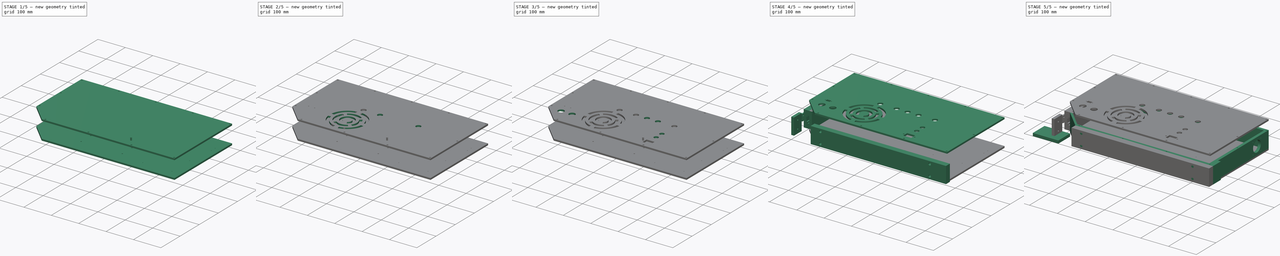
[diagram: build sequence overview — one tinted view per stage of 5, left to right]
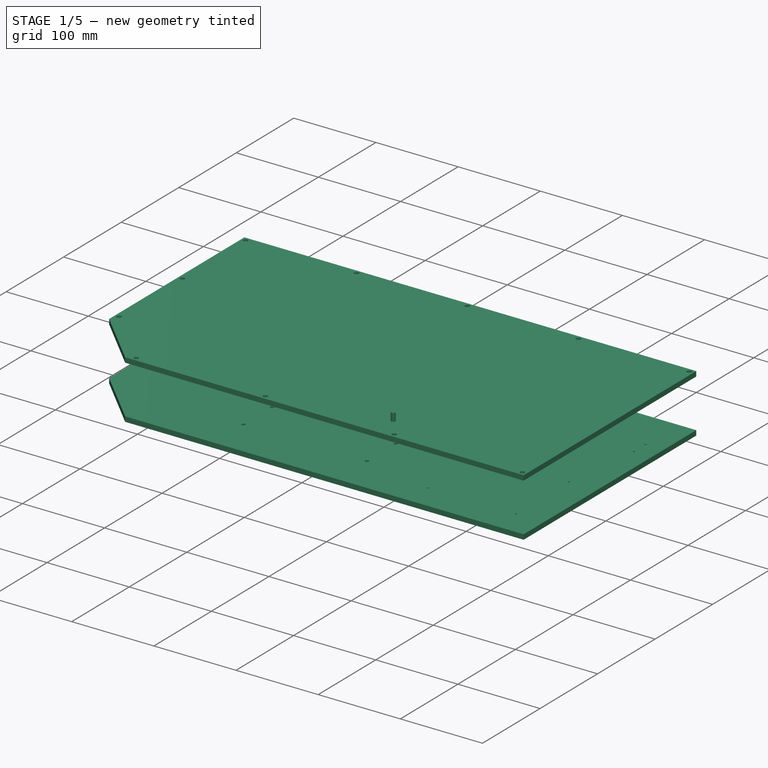
[diagram: stage 1 of 5 — iso view after this stage's code; geometry added in this stage tinted green]
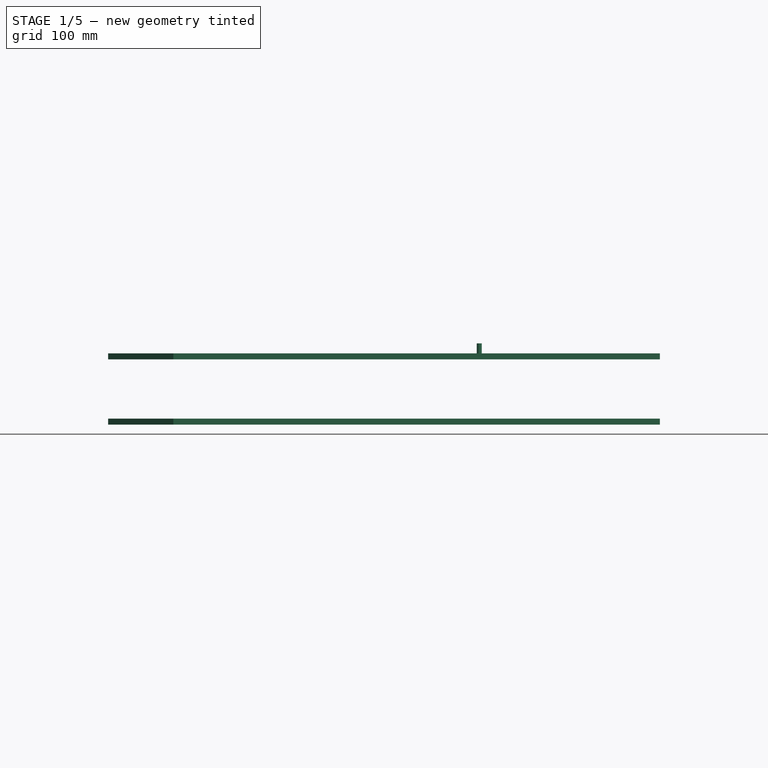
[diagram: stage 1 of 5 — front view after this stage's code; geometry added in this stage tinted green]
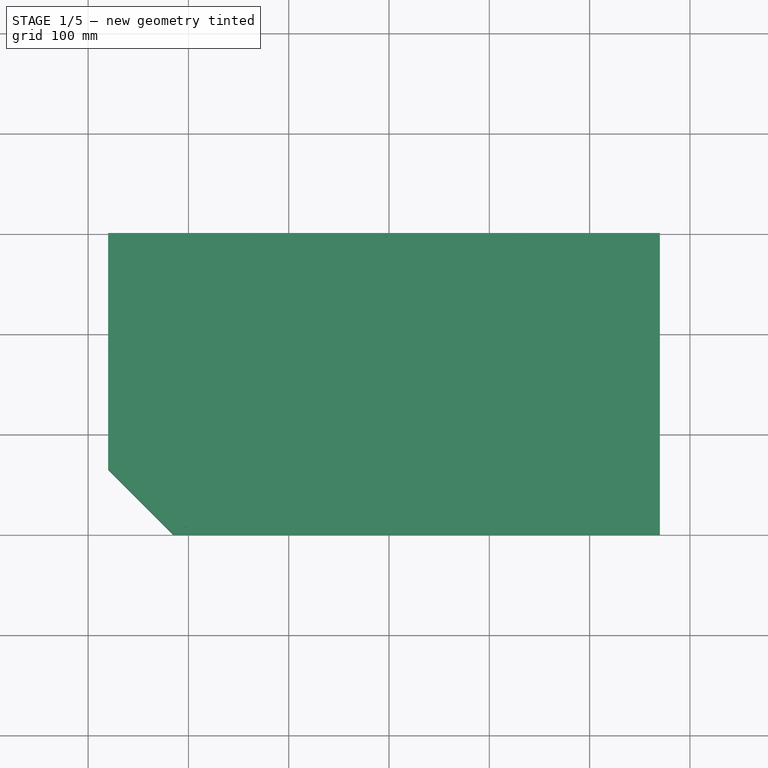
[diagram: stage 1 of 5 — top view after this stage's code; geometry added in this stage tinted green]
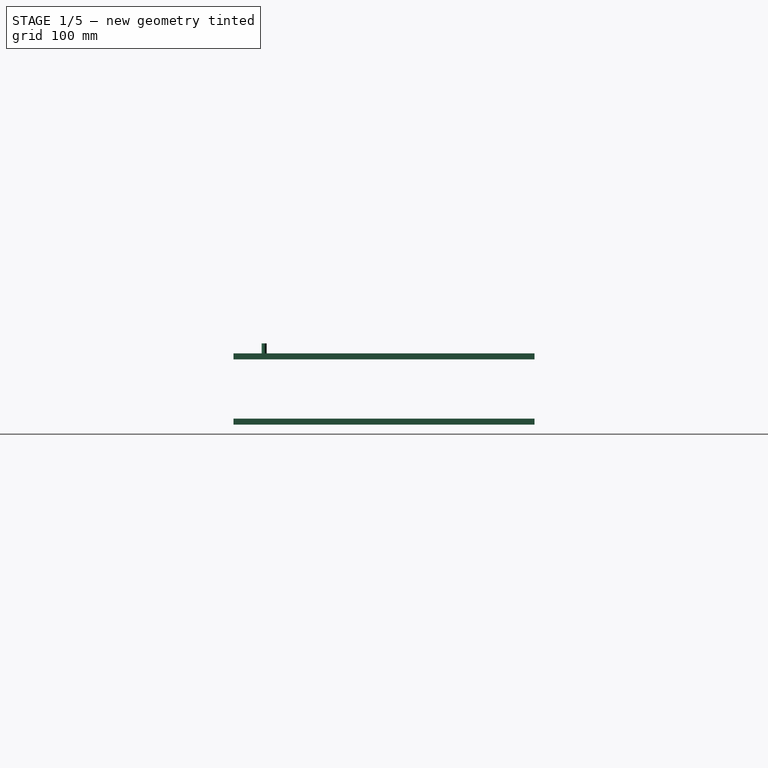
[diagram: stage 1 of 5 — right view after this stage's code; geometry added in this stage tinted green]
FCSTD DOCUMENT  (FreeCAD 0.17R13528 (Git))
Label: 2018-11-11_cosi-measure-v1.0_casing
License: All rights reserved
LicenseURL: http://en.wikipedia.org/wiki/All_rights_reserved
objects: Sketcher::SketchObject×61, PartDesign::Pad×42, PartDesign::Body×35, TechDraw::DrawViewDimension×30, PartDesign::ShapeBinder×29, Part::Cut×23, PartDesign::Hole×18, Part::Part2DObjectPython×15, PartDesign::Boolean×2, Part::MultiFuse×2, TechDraw::DrawProjGroupItem×2, TechDraw::DrawSVGTemplate×1, TechDraw::DrawProjGroup×1, TechDraw::DrawViewAnnotation×1, TechDraw::DrawPage×1
note: 287 computed .brp shape members not serialized (recipe doc carries the construction recipe); baked Part::Feature solids carry a one-line shape summary decoded from their .brp

FEATURE [Sketcher::SketchObject] Sketch008
  MapMode = 5
  Support = -> [XY_Plane007]
  sketch-geometry (5):
    g0: LineSegment StartX=85 StartY=0 StartZ=0 EndX=20 EndY=65 EndZ=0
    g1: LineSegment StartX=20 StartY=65 StartZ=0 EndX=20 EndY=300 EndZ=0
    g2: LineSegment StartX=20 StartY=300 StartZ=0 EndX=570 EndY=300 EndZ=0
    g3: LineSegment StartX=570 StartY=300 StartZ=0 EndX=570 EndY=0 EndZ=0
    g4: LineSegment StartX=570 StartY=0 StartZ=0 EndX=85 EndY=0 EndZ=0
  constraints (15):
    c: PointOnObject(g0,g-1)
    c: Coincident(g0,g1)
    c: Vertical(g1)
    c: Coincident(g1,g2)
    c: Horizontal(g2)
    c: Coincident(g2,g3)
    c: Vertical(g3)
    c: Coincident(g3,g4)
    c: Coincident(g4,g0)
    c: Horizontal(g4)
    c: DistanceY(g3,g3) = 300
    c: DistanceX(g2,g2) = 550
    c: DistanceX(g-1,g0) = 20
    c: Angle(g0,g-1) = 0.785398
    c: DistanceX(g-1,g0) = 85
FEATURE [PartDesign::Pad] Pad
  Length = 6
  Length2 = 100
  Profile = -> Sketch008
  Type = 0
FEATURE [Sketcher::SketchObject] Sketch
  MapMode = 5
  Placement = pos=(0,0,6) rot=(0,0,1;0rad)
  Support = -> [Pad]
  sketch-geometry (24):
    g0: Circle CenterX=60 CenterY=160 CenterZ=0 NormalX=0 NormalY=0 NormalZ=1 AngleXU=0 Radius=3
    g1: Circle CenterX=158 CenterY=160 CenterZ=0 NormalX=0 NormalY=0 NormalZ=1 AngleXU=0 Radius=3
    g2: Circle CenterX=158 CenterY=252 CenterZ=0 NormalX=0 NormalY=0 NormalZ=1 AngleXU=0 Radius=3
    g3: Circle CenterX=60 CenterY=252 CenterZ=0 NormalX=0 NormalY=0 NormalZ=1 AngleXU=0 Radius=3
    g4: Circle CenterX=186 CenterY=223 CenterZ=0 NormalX=0 NormalY=0 NormalZ=1 AngleXU=0 Radius=3
    g5: Circle CenterX=186 CenterY=243 CenterZ=0 NormalX=0 NormalY=0 NormalZ=1 AngleXU=0 Radius=3
    g6: Circle CenterX=297.4 CenterY=243 CenterZ=0 NormalX=0 NormalY=0 NormalZ=1 AngleXU=0 Radius=3
    g7: Circle CenterX=297.4 CenterY=223 CenterZ=0 NormalX=0 NormalY=0 NormalZ=1 AngleXU=0 Radius=3
    g8: Circle CenterX=311.4 CenterY=243 CenterZ=0 NormalX=0 NormalY=0 NormalZ=1 AngleXU=0 Radius=3
    g9: Circle CenterX=422.8 CenterY=243 CenterZ=0 NormalX=0 NormalY=0 NormalZ=1 AngleXU=0 Radius=3
    g10: Circle CenterX=422.8 CenterY=223 CenterZ=0 NormalX=0 NormalY=0 NormalZ=1 AngleXU=0 Radius=3
    g11: Circle CenterX=311.4 CenterY=223 CenterZ=0 NormalX=0 NormalY=0 NormalZ=1 AngleXU=0 Radius=3
    g12: Circle CenterX=436.8 CenterY=243 CenterZ=0 NormalX=0 NormalY=0 NormalZ=1 AngleXU=0 Radius=3
    g13: Circle CenterX=436.8 CenterY=223 CenterZ=0 NormalX=0 NormalY=0 NormalZ=1 AngleXU=0 Radius=3
    g14: Circle CenterX=548.2 CenterY=243 CenterZ=0 NormalX=0 NormalY=0 NormalZ=1 AngleXU=0 Radius=3
    g15: Circle CenterX=548.2 CenterY=223 CenterZ=0 NormalX=0 NormalY=0 NormalZ=1 AngleXU=0 Radius=3
    g16: Circle CenterX=192.5 CenterY=52 CenterZ=0 NormalX=0 NormalY=0 NormalZ=1 AngleXU=0 Radius=3
    g17: Circle CenterX=192.5 CenterY=102 CenterZ=0 NormalX=0 NormalY=0 NormalZ=1 AngleXU=0 Radius=3
    g18: Circle CenterX=342.5 CenterY=102 CenterZ=0 NormalX=0 NormalY=0 NormalZ=1 AngleXU=0 Radius=3
    g19: Circle CenterX=342.5 CenterY=52 CenterZ=0 NormalX=0 NormalY=0 NormalZ=1 AngleXU=0 Radius=3
    g20: Circle CenterX=430 CenterY=127 CenterZ=0 NormalX=0 NormalY=0 NormalZ=1 AngleXU=0 Radius=3
    g21: Circle CenterX=536 CenterY=35 CenterZ=0 NormalX=0 NormalY=0 NormalZ=1 AngleXU=0 Radius=3
    g22: Circle CenterX=536 CenterY=127 CenterZ=0 NormalX=0 NormalY=0 NormalZ=1 AngleXU=0 Radius=3
    g23: Circle CenterX=429.291 CenterY=35 CenterZ=0 NormalX=0 NormalY=0 NormalZ=1 AngleXU=0 Radius=3
  constraints (71):
    c: DistanceY(g-1,g0) = 160
    c: Horizontal(g1,g0)
    c: DistanceX(g0,g1) = 98
    c: Vertical(g3,g0)
    c: Vertical(g2,g1)
    c: Horizontal(g2,g3)
    c: DistanceY(g0,g3) = 92
    c: Horizontal(g5,g6)
    c: Vertical(g6,g7)
    c: Vertical(g5,g4)
    c: DistanceX(g1,g4) = 28
    c: Horizontal(g7,g4)
    c: DistanceY(g4,g5) = 20
    c: Radius(g3) = 3
    c: Radius(g0) = 3
    c: Radius(g2) = 3
    c: Radius(g1) = 3
    c: Radius(g4) = 3
    c: Radius(g5) = 3
    c: Radius(g6) = 3
    c: Radius(g7) = 3
    c: DistanceX(g-1,g0) = 60
    c: DistanceX(g4,g7) = 111.4
    c: Horizontal(g8,g9)
    c: Horizontal(g9,g6)
    c: Horizontal(g11,g10)
    c: Horizontal(g10,g7)
    c: DistanceX(g11,g10) = 111.4
    c: Vertical(g8,g11)
    c: Vertical(g10,g9)
    c: DistanceX(g7,g11) = 14
    c: Radius(g8) = 3
    c: Equal(g8,g11)
    c: Equal(g8,g9)
    c: Equal(g8,g10)
    c: Vertical(g15,g14)
    c: Vertical(g12,g13)
    c: Horizontal(g14,g12)
    c: Horizontal(g13,g10)
    c: Horizontal(g15,g13)
    c: DistanceX(g10,g13) = 14
    c: Horizontal(g12,g9)
    c: DistanceX(g13,g15) = 111.4
    c: Radius(g14) = 3
    c: Equal(g14,g15)
    c: Equal(g14,g13)
    c: Equal(g14,g12)
    c: Radius(g17) = 3
    c: Equal(g17,g18)
    c: Equal(g17,g19)
    c: Equal(g17,g16)
    c: Vertical(g17,g16)
    c: Horizontal(g19,g16)
    c: Vertical(g18,g19)
    c: Horizontal(g18,g17)
    c: DistanceX(g16,g19) = 150
    c: DistanceY(g16,g17) = 50
    c: DistanceX(g-1,g16) = 192.5
    c: DistanceY(g-1,g16) = 52
    c: DistanceX(g20,g21) = 106
    c: DistanceY(g21,g20) = 92
    c: Radius(g21) = 3
    c: Equal(g21,g20)
    c: DistanceX(g18,g20) = 87.5
    c: DistanceY(g-1,g21) = 35
    c: DistanceY(g-1,g4) = 223
    c: Horizontal(g22,g20)
    c: Vertical(g22,g21)
    c: Radius(g22) = 3
    c: Radius(g23) = 3
    c: Horizontal(g23,g21)
FEATURE [PartDesign::Hole] Hole
  BaseFeature = -> Pad
  Depth = 25
  DepthType = 0
  Diameter = 2.5
  DrillPoint = 0
  DrillPointAngle = 118
  HoleCutCountersinkAngle = 90
  HoleCutDepth = 0
  HoleCutDiameter = 3
  HoleCutType = 0
  ModelActualThread = false
  Profile = -> Sketch
  Tapered = false
  TaperedAngle = 90
  ThreadAngle = 60
  ThreadClass = 0
  ThreadCutOffInner = 0.0541266
  ThreadCutOffOuter = 0.108253
  ThreadDirection = 1
  ThreadFit = 0
  ThreadPitch = 0.5
  ThreadSize = 3
  ThreadType = 1
  Threaded = true
FEATURE [PartDesign::Hole] Hole001
  BaseFeature = -> Hole
  Depth = 25
  DepthType = 1
  Diameter = 2.5
  DrillPoint = 0
  DrillPointAngle = 118
  HoleCutCountersinkAngle = 90
  HoleCutDepth = 0
  HoleCutDiameter = 3
  HoleCutType = 0
  ModelActualThread = false
  Profile = -> Sketch
  Tapered = false
  TaperedAngle = 90
  ThreadAngle = 60
  ThreadClass = 0
  ThreadCutOffInner = 0.0541266
  ThreadCutOffOuter = 0.108253
  ThreadDirection = 1
  ThreadFit = 0
  ThreadPitch = 0.5
  ThreadSize = 3
  ThreadType = 1
  Threaded = true
FEATURE [Sketcher::SketchObject] Sketch017
  MapMode = 5
  Placement = pos=(0,0,65) rot=(0,0,-1;1.5708rad)
  sketch-geometry (5):
    g0: LineSegment StartX=-300 StartY=570 StartZ=0 EndX=0 EndY=570 EndZ=0
    g1: LineSegment StartX=0 StartY=570 StartZ=0 EndX=0 EndY=85 EndZ=0
    g2: LineSegment StartX=0 StartY=85 StartZ=0 EndX=-65 EndY=20 EndZ=0
    g3: LineSegment StartX=-65 StartY=20 StartZ=0 EndX=-300 EndY=20 EndZ=0
    g4: LineSegment StartX=-300 StartY=20 StartZ=0 EndX=-300 EndY=570 EndZ=0
  constraints (15):
    c: Horizontal(g0)
    c: Coincident(g0,g1)
    c: PointOnObject(g1,g-2)
    c: Vertical(g1)
    c: Coincident(g1,g2)
    c: Coincident(g2,g3)
    c: Horizontal(g3)
    c: Coincident(g3,g4)
    c: Coincident(g4,g0)
    c: Vertical(g4)
    c: DistanceY(g-1,g1) = 85
    c: Angle(g2,g-2) = 0.785398
    c: DistanceY(g1,g1) = 485
    c: DistanceX(g0,g0) = 300
    c: DistanceY(g-1,g2) = 20
FEATURE [PartDesign::Pad] Pad007
  Length = 6
  Length2 = 100
  Placement = pos=(0,0,65) rot=(0,0,-1;1.5708rad)
  Profile = -> Sketch017
  Type = 0
FEATURE [PartDesign::Body] Body012  label="Corner"
  Group = -> [CopyHole001,Sketch020,Pad008]
  Origin = -> Origin012
  Tip = -> Pad008
FEATURE [Sketcher::SketchObject] Sketch021
  MapMode = 5
  Placement = pos=(0,0,71) rot=(0,0,-1;1.5708rad)
  Support = -> [Pad007]
  sketch-geometry (11):
    g0: Circle CenterX=-5 CenterY=95 CenterZ=0 NormalX=0 NormalY=0 NormalZ=1 AngleXU=0 Radius=21.1679
    g1: Circle CenterX=-5 CenterY=252 CenterZ=0 NormalX=0 NormalY=0 NormalZ=1 AngleXU=0 Radius=22.4818
    g2: Circle CenterX=-5 CenterY=409 CenterZ=0 NormalX=0 NormalY=0 NormalZ=1 AngleXU=0 Radius=20.9603
    g3: Circle CenterX=-5 CenterY=565 CenterZ=0 NormalX=0 NormalY=0 NormalZ=1 AngleXU=0 Radius=24.6473
    g4: Circle CenterX=-295 CenterY=565 CenterZ=0 NormalX=0 NormalY=0 NormalZ=1 AngleXU=0 Radius=20.9604
    g5: Circle CenterX=-295 CenterY=430 CenterZ=0 NormalX=0 NormalY=0 NormalZ=1 AngleXU=0 Radius=21.099
    g6: Circle CenterX=-295 CenterY=295 CenterZ=0 NormalX=0 NormalY=0 NormalZ=1 AngleXU=0 Radius=18.9384
    g7: Circle CenterX=-295 CenterY=25 CenterZ=0 NormalX=0 NormalY=0 NormalZ=1 AngleXU=0 Radius=16.7312
    g8: Circle CenterX=-75 CenterY=25 CenterZ=0 NormalX=0 NormalY=0 NormalZ=1 AngleXU=0 Radius=15.5883
    g9: Circle CenterX=-185 CenterY=25 CenterZ=0 NormalX=0 NormalY=0 NormalZ=1 AngleXU=0 Radius=17.4701
    g10: Circle CenterX=-295 CenterY=160 CenterZ=0 NormalX=0 NormalY=0 NormalZ=1 AngleXU=0 Radius=23.0159
  constraints (22):
    c: DistanceX(g0,g-1) = 5
    c: DistanceY(g-1,g0) = 95
    c: Vertical(g3,g2)
    c: Vertical(g2,g1)
    c: Vertical(g1,g0)
    c: DistanceY(g-1,g3) = 565
    c: DistanceY(g2,g3) = 156
    c: DistanceY(g0,g1) = 157
    c: Vertical(g4,g5)
    c: Vertical(g5,g6)
    c: Vertical(g6,g10)
    c: Vertical(g10,g7)
    c: DistanceX(g7,g-1) = 295
    c: DistanceY(g-1,g7) = 25
    c: DistanceY(g5,g4) = 135
    c: DistanceY(g6,g5) = 135
    c: DistanceY(g10,g6) = 135
    c: DistanceY(g-1,g4) = 565
    c: Horizontal(g7,g9)
    c: Horizontal(g9,g8)
    c: DistanceX(g7,g9) = 110
    c: DistanceX(g9,g8) = 110
FEATURE [PartDesign::Hole] Hole002
  BaseFeature = -> Pad007
  Depth = 25
  DepthType = 1
  Diameter = 5.5
  DrillPoint = 1
  DrillPointAngle = 118
  HoleCutCountersinkAngle = 90
  HoleCutDepth = 0
  HoleCutDiameter = 5
  HoleCutType = 0
  ModelActualThread = false
  Placement = pos=(0,0,65) rot=(0,0,-1;1.5708rad)
  Profile = -> Sketch021
  Tapered = false
  TaperedAngle = 90
  ThreadAngle = 0
  ThreadClass = 0
  ThreadCutOffInner = 0
  ThreadCutOffOuter = 0
  ThreadDirection = 0
  ThreadFit = 0
  ThreadPitch = 0
  ThreadSize = 6
  ThreadType = 1
  Threaded = false
FEATURE [PartDesign::Body] Body011  label="Front cover"
  Group = -> [Sketch017,Pad007,Sketch021,Hole002]
  Origin = -> Origin011
  Tip = -> Hole002
FEATURE [PartDesign::ShapeBinder] CopyHole002
  Placement = pos=(0,0,65) rot=(0,0,-1;1.5708rad)
FEATURE [Sketcher::SketchObject] Sketch022
  MapMode = 5
  Placement = pos=(0,0,71) rot=(0,0,-1;1.5708rad)
  Support = -> [CopyHole002]
  sketch-geometry (2):
    g0: Circle CenterX=-85 CenterY=225 CenterZ=0 NormalX=0 NormalY=0 NormalZ=1 AngleXU=0 Radius=55
    g1: Circle CenterX=-85 CenterY=225 CenterZ=0 NormalX=0 NormalY=0 NormalZ=1 AngleXU=0 Radius=65
  constraints (5):
    c: Coincident(g0,g1)
    c: Radius(g1) = 65
    c: Radius(g0) = 55
    c: DistanceX(g0,g-1) = 85
    c: DistanceY(g-1,g0) = 225
FEATURE [PartDesign::Pad] Pad009
  Length = 6
  Length2 = 100
  Placement = pos=(0,0,65) rot=(0,0,-1;1.5708rad)
  Profile = -> Sketch022
  Type = 0
FEATURE [PartDesign::Body] Body013  label="OSI Logo"
  Group = -> [CopyHole002,Sketch022,Pad009]
  Origin = -> Origin013
  Tip = -> Pad009
FEATURE [Part::Cut] Cut
  Base = -> Body013
  Placement = pos=(0,0,-6) rot=(0,0,1;0rad)
FEATURE [PartDesign::Body] Body018  label="OSI Logo 3"
  Group = -> [CopyHole002003,Sketch027,Pad014,Boolean]
  Origin = -> Origin018
  Placement = pos=(0,0,-6) rot=(0,0,1;0rad)
  Tip = -> Boolean
FEATURE [Part::Cut] Cut003
  Base = -> Body011
  Tool = -> Cut
FEATURE [Sketcher::SketchObject] Sketch030
  MapMode = 5
  Placement = pos=(0,0,6) rot=(0,0,1;0rad)
  Support = -> [Hole001]
  sketch-geometry (24):
    g0: LineSegment StartX=375 StartY=20 StartZ=0 EndX=160 EndY=20 EndZ=0
    g1: LineSegment StartX=160 StartY=20 StartZ=0 EndX=160 EndY=134 EndZ=0
    g2: LineSegment StartX=160 StartY=134 StartZ=0 EndX=375 EndY=134 EndZ=0
    g3: LineSegment StartX=375 StartY=134 StartZ=0 EndX=375 EndY=20 EndZ=0
    g4: LineSegment StartX=425 StartY=134 StartZ=0 EndX=543 EndY=134 EndZ=0
    g5: LineSegment StartX=543 StartY=134 StartZ=0 EndX=543 EndY=30 EndZ=0
    g6: LineSegment StartX=543 StartY=30 StartZ=0 EndX=425 EndY=30 EndZ=0
    g7: LineSegment StartX=425 StartY=30 StartZ=0 EndX=425 EndY=134 EndZ=0
    g8: LineSegment StartX=55 StartY=256.309 StartZ=0 EndX=161 EndY=256.309 EndZ=0
    g9: LineSegment StartX=161 StartY=256.309 StartZ=0 EndX=161 EndY=156.309 EndZ=0
    g10: LineSegment StartX=161 StartY=156.309 StartZ=0 EndX=55 EndY=156.309 EndZ=0
    g11: LineSegment StartX=55 StartY=156.309 StartZ=0 EndX=55 EndY=256.309 EndZ=0
    g12: LineSegment StartX=183 StartY=270 StartZ=0 EndX=300 EndY=270 EndZ=0
    g13: LineSegment StartX=300 StartY=270 StartZ=0 EndX=300 EndY=195 EndZ=0
    g14: LineSegment StartX=300 StartY=195 StartZ=0 EndX=183 EndY=195 EndZ=0
    g15: LineSegment StartX=183 StartY=195 StartZ=0 EndX=183 EndY=270 EndZ=0
    g16: LineSegment StartX=308 StartY=270 StartZ=0 EndX=425 EndY=270 EndZ=0
    g17: LineSegment StartX=425 StartY=270 StartZ=0 EndX=425 EndY=195 EndZ=0
    g18: LineSegment StartX=425 StartY=195 StartZ=0 EndX=308 EndY=195 EndZ=0
    g19: LineSegment StartX=308 StartY=195 StartZ=0 EndX=308 EndY=270 EndZ=0
    g20: LineSegment StartX=433 StartY=270 StartZ=0 EndX=550 EndY=270 EndZ=0
    g21: LineSegment StartX=550 StartY=270 StartZ=0 EndX=550 EndY=195 EndZ=0
    g22: LineSegment StartX=550 StartY=195 StartZ=0 EndX=433 EndY=195 EndZ=0
    g23: LineSegment StartX=433 StartY=195 StartZ=0 EndX=433 EndY=270 EndZ=0
  constraints (71):
    c: Coincident(g0,g1)
    c: Coincident(g1,g2)
    c: Coincident(g2,g3)
    c: Coincident(g3,g0)
    c: Horizontal(g0)
    c: Horizontal(g2)
    c: Vertical(g1)
    c: Vertical(g3)
    c: DistanceY(g1,g1) = 114
    c: DistanceX(g0,g0) = 215
    c: Coincident(g4,g5)
    c: Coincident(g5,g6)
    c: Coincident(g6,g7)
    c: Coincident(g7,g4)
    c: Horizontal(g4)
    c: Horizontal(g6)
    c: Vertical(g5)
    c: Vertical(g7)
    c: DistanceY(g5,g5) = 104
    c: DistanceX(g6,g6) = 118
    c: DistanceX(g-1,g0) = 160
    c: DistanceY(g-1,g0) = 20
    c: DistanceX(g2,g4) = 50
    c: DistanceY(g-1,g4) = 134
    c: Coincident(g8,g9)
    c: Coincident(g9,g10)
    c: Coincident(g10,g11)
    c: Coincident(g11,g8)
    c: Horizontal(g8)
    c: Horizontal(g10)
    c: Vertical(g9)
    c: Vertical(g11)
    c: Coincident(g12,g13)
    c: Coincident(g13,g14)
    c: Coincident(g14,g15)
    c: Coincident(g15,g12)
    c: Horizontal(g12)
    c: Horizontal(g14)
    c: Vertical(g13)
    c: Vertical(g15)
    c: Coincident(g16,g17)
    c: Coincident(g17,g18)
    c: Coincident(g18,g19)
    c: Coincident(g19,g16)
    c: Horizontal(g16)
    c: Horizontal(g18)
    c: Vertical(g17)
    c: Vertical(g19)
    c: Coincident(g20,g21)
    c: Coincident(g21,g22)
    c: Coincident(g22,g23)
    c: Coincident(g23,g20)
    c: Horizontal(g20)
    c: Horizontal(g22)
    c: Vertical(g21)
    c: Vertical(g23)
    c: DistanceY(g11,g11) = 100
    c: DistanceX(g10,g10) = 106
    c: DistanceX(g14,g14) = 117
    c: DistanceX(g18,g18) = 117
    c: DistanceX(g22,g22) = 117
    c: DistanceX(g12,g16) = 8
    c: DistanceX(g16,g20) = 8
    c: DistanceX(g8,g12) = 22
    c: DistanceY(g13,g13) = 75
    c: DistanceY(g19,g19) = 75
    c: DistanceY(g23,g23) = 75
    c: Horizontal(g12,g16)
    c: Horizontal(g16,g20)
    c: DistanceX(g-1,g10) = 55
    c: DistanceY(g-1,g14) = 195
FEATURE [Sketcher::SketchObject] Sketch031
  MapMode = 5
  Placement = pos=(0,0,65) rot=(0,0,-1;1.5708rad)
  sketch-geometry (5):
    g0: LineSegment StartX=-300 StartY=570 StartZ=0 EndX=0 EndY=570 EndZ=0
    g1: LineSegment StartX=0 StartY=570 StartZ=0 EndX=0 EndY=85 EndZ=0
    g2: LineSegment StartX=0 StartY=85 StartZ=0 EndX=-65 EndY=20 EndZ=0
    g3: LineSegment StartX=-65 StartY=20 StartZ=0 EndX=-300 EndY=20 EndZ=0
    g4: LineSegment StartX=-300 StartY=20 StartZ=0 EndX=-300 EndY=570 EndZ=0
  constraints (15):
    c: Horizontal(g0)
    c: Coincident(g0,g1)
    c: PointOnObject(g1,g-2)
    c: Vertical(g1)
    c: Coincident(g1,g2)
    c: Coincident(g2,g3)
    c: Horizontal(g3)
    c: Coincident(g3,g4)
    c: Coincident(g4,g0)
    c: Vertical(g4)
    c: DistanceY(g-1,g1) = 85
    c: Angle(g2,g-2) = 0.785398
    c: DistanceY(g1,g1) = 485
    c: DistanceX(g0,g0) = 300
    c: DistanceY(g-1,g2) = 20
FEATURE [PartDesign::Pad] Pad016
  Length = 6
  Length2 = 100
  Placement = pos=(0,0,65) rot=(0,0,-1;1.5708rad)
  Profile = -> Sketch031
  Type = 0
FEATURE [Sketcher::SketchObject] Sketch032
  MapMode = 5
  Placement = pos=(0,0,71) rot=(0,0,-1;1.5708rad)
  Support = -> [Pad016]
  sketch-geometry (11):
    g0: Circle CenterX=-5 CenterY=95 CenterZ=0 NormalX=0 NormalY=0 NormalZ=1 AngleXU=0 Radius=21.1679
    g1: Circle CenterX=-5 CenterY=252 CenterZ=0 NormalX=0 NormalY=0 NormalZ=1 AngleXU=0 Radius=22.4818
    g2: Circle CenterX=-5 CenterY=409 CenterZ=0 NormalX=0 NormalY=0 NormalZ=1 AngleXU=0 Radius=20.9603
    g3: Circle CenterX=-5 CenterY=565 CenterZ=0 NormalX=0 NormalY=0 NormalZ=1 AngleXU=0 Radius=24.6473
    g4: Circle CenterX=-295 CenterY=565 CenterZ=0 NormalX=0 NormalY=0 NormalZ=1 AngleXU=0 Radius=20.9604
    g5: Circle CenterX=-295 CenterY=430 CenterZ=0 NormalX=0 NormalY=0 NormalZ=1 AngleXU=0 Radius=21.099
    g6: Circle CenterX=-295 CenterY=295 CenterZ=0 NormalX=0 NormalY=0 NormalZ=1 AngleXU=0 Radius=18.9384
    g7: Circle CenterX=-295 CenterY=25 CenterZ=0 NormalX=0 NormalY=0 NormalZ=1 AngleXU=0 Radius=16.7312
    g8: Circle CenterX=-75 CenterY=25 CenterZ=0 NormalX=0 NormalY=0 NormalZ=1 AngleXU=0 Radius=15.5883
    g9: Circle CenterX=-185 CenterY=25 CenterZ=0 NormalX=0 NormalY=0 NormalZ=1 AngleXU=0 Radius=17.4701
    g10: Circle CenterX=-295 CenterY=160 CenterZ=0 NormalX=0 NormalY=0 NormalZ=1 AngleXU=0 Radius=23.0159
  constraints (22):
    c: DistanceX(g0,g-1) = 5
    c: DistanceY(g-1,g0) = 95
    c: Vertical(g3,g2)
    c: Vertical(g2,g1)
    c: Vertical(g1,g0)
    c: DistanceY(g-1,g3) = 565
    c: DistanceY(g2,g3) = 156
    c: DistanceY(g0,g1) = 157
    c: Vertical(g4,g5)
    c: Vertical(g5,g6)
    c: Vertical(g6,g10)
    c: Vertical(g10,g7)
    c: DistanceX(g7,g-1) = 295
    c: DistanceY(g-1,g7) = 25
    c: DistanceY(g5,g4) = 135
    c: DistanceY(g6,g5) = 135
    c: DistanceY(g10,g6) = 135
    c: DistanceY(g-1,g4) = 565
    c: Horizontal(g7,g9)
    c: Horizontal(g9,g8)
    c: DistanceX(g7,g9) = 110
    c: DistanceX(g9,g8) = 110
FEATURE [PartDesign::Hole] Hole003
  BaseFeature = -> Pad016
  Depth = 25
  DepthType = 1
  Diameter = 5.5
  DrillPoint = 1
  DrillPointAngle = 118
  HoleCutCountersinkAngle = 90
  HoleCutDepth = 0
  HoleCutDiameter = 5
  HoleCutType = 0
  ModelActualThread = false
  Placement = pos=(0,0,65) rot=(0,0,-1;1.5708rad)
  Profile = -> Sketch032
  Tapered = false
  TaperedAngle = 90
  ThreadAngle = 0
  ThreadClass = 0
  ThreadCutOffInner = 0
  ThreadCutOffOuter = 0
  ThreadDirection = 0
  ThreadFit = 0
  ThreadPitch = 0
  ThreadSize = 6
  ThreadType = 1
  Threaded = false
FEATURE [Sketcher::SketchObject] Sketch033
  MapMode = 5
  Placement = pos=(0,0,71) rot=(0,0,-1;1.5708rad)
  Support = -> [Hole003]
  sketch-geometry (4):
    g0: LineSegment StartX=-159.908 StartY=316.532 StartZ=0 EndX=-12.5368 EndY=316.532 EndZ=0
    g1: LineSegment StartX=-12.5368 StartY=316.532 StartZ=0 EndX=-12.5368 EndY=142.066 EndZ=0
    g2: LineSegment StartX=-12.5368 StartY=142.066 StartZ=0 EndX=-159.908 EndY=142.066 EndZ=0
    g3: LineSegment StartX=-159.908 StartY=142.066 StartZ=0 EndX=-159.908 EndY=316.532 EndZ=0
  constraints (8):
    c: Coincident(g0,g1)
    c: Coincident(g1,g2)
    c: Coincident(g2,g3)
    c: Coincident(g3,g0)
    c: Horizontal(g0)
    c: Horizontal(g2)
    c: Vertical(g1)
    c: Vertical(g3)
FEATURE [PartDesign::Pad] Pad017
  BaseFeature = -> Hole003
  Length = 6
  Length2 = 100
  Placement = pos=(0,0,65) rot=(0,0,-1;1.5708rad)
  Profile = -> Sketch033
  Reversed = true
  Type = 0
FEATURE [Sketcher::SketchObject] Sketch034
  MapMode = 5
  Placement = pos=(0,0,65) rot=(0,0,-1;1.5708rad)
  sketch-geometry (5):
    g0: LineSegment StartX=-300 StartY=570 StartZ=0 EndX=0 EndY=570 EndZ=0
    g1: LineSegment StartX=0 StartY=570 StartZ=0 EndX=0 EndY=85 EndZ=0
    g2: LineSegment StartX=0 StartY=85 StartZ=0 EndX=-65 EndY=20 EndZ=0
    g3: LineSegment StartX=-65 StartY=20 StartZ=0 EndX=-300 EndY=20 EndZ=0
    g4: LineSegment StartX=-300 StartY=20 StartZ=0 EndX=-300 EndY=570 EndZ=0
  constraints (15):
    c: Horizontal(g0)
    c: Coincident(g0,g1)
    c: PointOnObject(g1,g-2)
    c: Vertical(g1)
    c: Coincident(g1,g2)
    c: Coincident(g2,g3)
    c: Horizontal(g3)
    c: Coincident(g3,g4)
    c: Coincident(g4,g0)
    c: Vertical(g4)
    c: DistanceY(g-1,g1) = 85
    c: Angle(g2,g-2) = 0.785398
    c: DistanceY(g1,g1) = 485
    c: DistanceX(g0,g0) = 300
    c: DistanceY(g-1,g2) = 20
FEATURE [PartDesign::Pad] Pad018
  Length = 6
  Length2 = 100
  Placement = pos=(0,0,65) rot=(0,0,-1;1.5708rad)
  Profile = -> Sketch034
  Type = 0
FEATURE [Sketcher::SketchObject] Sketch035
  MapMode = 5
  Placement = pos=(0,0,71) rot=(0,0,-1;1.5708rad)
  Support = -> [Pad018]
  sketch-geometry (12):
    g0: Circle CenterX=-5 CenterY=95 CenterZ=0 NormalX=0 NormalY=0 NormalZ=1 AngleXU=0 Radius=21.1679
    g1: Circle CenterX=-5 CenterY=252 CenterZ=0 NormalX=0 NormalY=0 NormalZ=1 AngleXU=0 Radius=22.4818
    g2: Circle CenterX=-5 CenterY=409 CenterZ=0 NormalX=0 NormalY=0 NormalZ=1 AngleXU=0 Radius=20.9603
    g3: Circle CenterX=-5 CenterY=565 CenterZ=0 NormalX=0 NormalY=0 NormalZ=1 AngleXU=0 Radius=24.6473
    g4: Circle CenterX=-295 CenterY=565 CenterZ=0 NormalX=0 NormalY=0 NormalZ=1 AngleXU=0 Radius=20.9604
    g5: Circle CenterX=-146.548 CenterY=565 CenterZ=0 NormalX=0 NormalY=0 NormalZ=1 AngleXU=0 Radius=17.4422
    g6: Circle CenterX=-295 CenterY=430 CenterZ=0 NormalX=0 NormalY=0 NormalZ=1 AngleXU=0 Radius=21.099
    g7: Circle CenterX=-295 CenterY=295 CenterZ=0 NormalX=0 NormalY=0 NormalZ=1 AngleXU=0 Radius=18.9384
    g8: Circle CenterX=-295 CenterY=25 CenterZ=0 NormalX=0 NormalY=0 NormalZ=1 AngleXU=0 Radius=16.7312
    g9: Circle CenterX=-75 CenterY=25 CenterZ=0 NormalX=0 NormalY=0 NormalZ=1 AngleXU=0 Radius=15.5883
    g10: Circle CenterX=-185 CenterY=25 CenterZ=0 NormalX=0 NormalY=0 NormalZ=1 AngleXU=0 Radius=17.4701
    g11: Circle CenterX=-295 CenterY=160 CenterZ=0 NormalX=0 NormalY=0 NormalZ=1 AngleXU=0 Radius=23.0159
  constraints (23):
    c: DistanceX(g0,g-1) = 5
    c: DistanceY(g-1,g0) = 95
    c: Vertical(g3,g2)
    c: Vertical(g2,g1)
    c: Vertical(g1,g0)
    c: DistanceY(g-1,g3) = 565
    c: DistanceY(g2,g3) = 156
    c: DistanceY(g0,g1) = 157
    c: Vertical(g4,g6)
    c: Vertical(g6,g7)
    c: Vertical(g7,g11)
    c: Vertical(g11,g8)
    c: DistanceX(g8,g-1) = 295
    c: DistanceY(g-1,g8) = 25
    c: DistanceY(g6,g4) = 135
    c: DistanceY(g7,g6) = 135
    c: DistanceY(g11,g7) = 135
    c: DistanceY(g-1,g4) = 565
    c: Horizontal(g8,g10)
    c: Horizontal(g10,g9)
    c: DistanceX(g8,g10) = 110
    c: DistanceX(g10,g9) = 110
    c: Horizontal(g5,g3)
FEATURE [PartDesign::Hole] Hole004
  BaseFeature = -> Pad018
  Depth = 25
  DepthType = 1
  Diameter = 5.5
  DrillPoint = 1
  DrillPointAngle = 118
  HoleCutCountersinkAngle = 90
  HoleCutDepth = 0
  HoleCutDiameter = 5
  HoleCutType = 0
  ModelActualThread = false
  Placement = pos=(0,0,65) rot=(0,0,-1;1.5708rad)
  Profile = -> Sketch035
  Tapered = false
  TaperedAngle = 90
  ThreadAngle = 0
  ThreadClass = 0
  ThreadCutOffInner = 0
  ThreadCutOffOuter = 0
  ThreadDirection = 0
  ThreadFit = 0
  ThreadPitch = 0
  ThreadSize = 6
  ThreadType = 1
  Threaded = false
FEATURE [PartDesign::ShapeBinder] CopyCut007
FEATURE [Sketcher::SketchObject] Sketch043
  MapMode = 5
  Placement = pos=(0,0,71) rot=(0,0,1;0rad)
  Support = -> [CopyCut007]
  sketch-geometry (1):
    g0: Circle CenterX=210 CenterY=165 CenterZ=0 NormalX=0 NormalY=0 NormalZ=1 AngleXU=0 Radius=9
  constraints (3):
    c: Radius(g0) = 9
    c: DistanceY(g-1,g0) = 165
    c: DistanceX(g-1,g0) = 210
FEATURE [PartDesign::Pad] Pad021
  Length = 6
  Length2 = 100
  Profile = -> Sketch043
  Reversed = true
  Type = 0
FEATURE [PartDesign::Body] Body008  label="Top"
  Group = -> [CopyPad,Sketch012,Pad003,Sketch040,Hole007,Sketch067,Hole015]
  Origin = -> Origin008
  Tip = -> Hole015
FEATURE [Sketcher::SketchObject] Sketch068
  MapMode = 5
  Placement = pos=(0,0,0) rot=(1,0,0;3.14159rad)
  Support = -> [Hole001]
  sketch-geometry (4):
    g0: Circle CenterX=192.5 CenterY=-52 CenterZ=0 NormalX=0 NormalY=0 NormalZ=1 AngleXU=0 Radius=8.52104
    g1: Circle CenterX=192.5 CenterY=-102 CenterZ=0 NormalX=0 NormalY=0 NormalZ=1 AngleXU=0 Radius=9.80596
    g2: Circle CenterX=342.859 CenterY=-102 CenterZ=0 NormalX=0 NormalY=0 NormalZ=1 AngleXU=0 Radius=8.24006
    g3: Circle CenterX=342.859 CenterY=-52 CenterZ=0 NormalX=0 NormalY=0 NormalZ=1 AngleXU=0 Radius=10.1983
  constraints (7):
    c: Vertical(g0,g1)
    c: Horizontal(g0,g3)
    c: Vertical(g2,g3)
    c: DistanceX(g-1,g0) = 192.5
    c: DistanceY(g0,g-1) = 52
    c: DistanceY(g1,g0) = 50
    c: Horizontal(g2,g1)
FEATURE [PartDesign::Hole] Hole016
  BaseFeature = -> Hole001
  Depth = 25
  DepthType = 0
  Diameter = 4.4
  DrillPoint = 1
  DrillPointAngle = 118
  HoleCutCountersinkAngle = 90
  HoleCutDepth = 0
  HoleCutDiameter = 8
  HoleCutType = 2
  ModelActualThread = false
  Profile = -> Sketch068
  Tapered = false
  TaperedAngle = 90
  ThreadAngle = 0
  ThreadClass = 0
  ThreadCutOffInner = 0
  ThreadCutOffOuter = 0
  ThreadDirection = 0
  ThreadFit = 0
  ThreadPitch = 0
  ThreadSize = 5
  ThreadType = 1
  Threaded = false
FEATURE [PartDesign::Body] Body039  label="Socket HDMI 3"
  Group = -> [CopyCut019,Sketch069,Pad040]
  Origin = -> Origin039
  Tip = -> Pad040
FEATURE [PartDesign::ShapeBinder] CopyCut019001
FEATURE [Sketcher::SketchObject] Sketch070
  MapMode = 5
  Placement = pos=(0,0,71) rot=(0,0,1;0rad)
  Support = -> [CopyCut019001]
  sketch-geometry (2):
    g0: Circle CenterX=59 CenterY=94 CenterZ=0 NormalX=0 NormalY=0 NormalZ=1 AngleXU=0 Radius=9.71355
    g1: Circle CenterX=81 CenterY=94 CenterZ=0 NormalX=0 NormalY=0 NormalZ=1 AngleXU=0 Radius=8.85337
  constraints (4):
    c: Horizontal(g0,g1)
    c: DistanceX(g0,g1) = 22
    c: DistanceY(g-1,g0) = 94
    c: DistanceX(g-1,g0) = 59
FEATURE [PartDesign::Hole] Hole017
  BaseFeature = -> Hole004
  Depth = 25
  DepthType = 1
  Diameter = 3.3
  DrillPoint = 1
  DrillPointAngle = 118
  HoleCutCountersinkAngle = 90
  HoleCutDepth = 0
  HoleCutDiameter = 3
  HoleCutType = 0
  ModelActualThread = false
  Placement = pos=(0,0,65) rot=(0,0,-1;1.5708rad)
  Profile = -> Sketch070
  Tapered = false
  TaperedAngle = 90
  ThreadAngle = 0
  ThreadClass = 0
  ThreadCutOffInner = 0
  ThreadCutOffOuter = 0
  ThreadDirection = 0
  ThreadFit = 0
  ThreadPitch = 0
  ThreadSize = 3
  ThreadType = 1
  Threaded = false
FEATURE [PartDesign::ShapeBinder] CopyCut021
FEATURE [Sketcher::SketchObject] Sketch077
  ExternalGeometry = -> [CopyCut021]
  MapMode = 5
  Placement = pos=(0,0,71) rot=(0,0,1;0rad)
  Support = -> [CopyCut021]
  sketch-geometry (1):
    g0: Circle CenterX=390 CenterY=30.5 CenterZ=0 NormalX=0 NormalY=0 NormalZ=1 AngleXU=0 Radius=2.5
  constraints (3):
    c: DistanceX(g0,g-3) = 5.5
    c: DistanceY(g0,g-3) = 10.5
    c: Radius(g0) = 2.5
FEATURE [PartDesign::Pad] Pad046
  Length = 10
  Length2 = 100
  Profile = -> Sketch077
  Type = 0
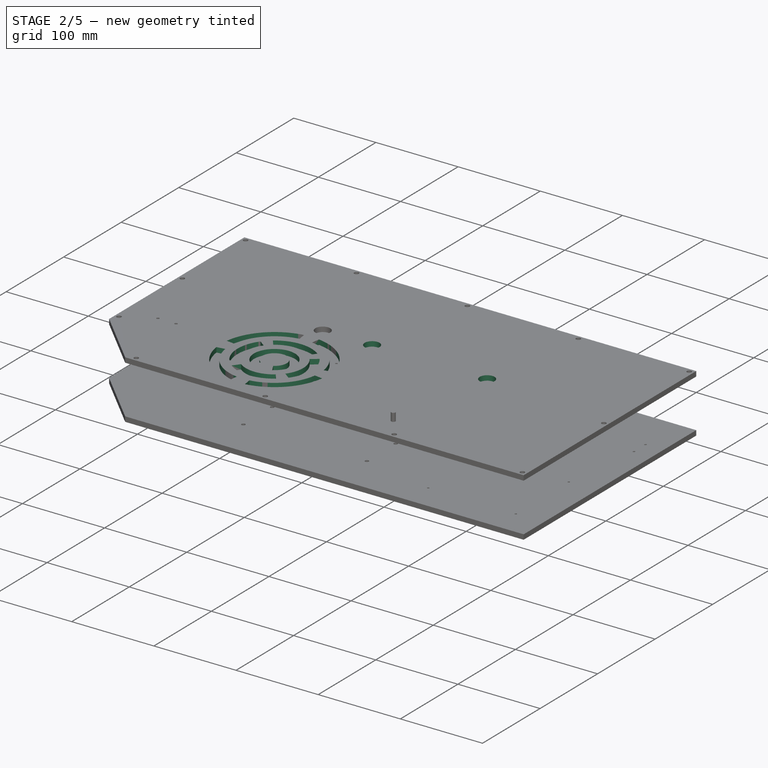
[diagram: stage 2 of 5 — iso view after this stage's code; geometry added in this stage tinted green]
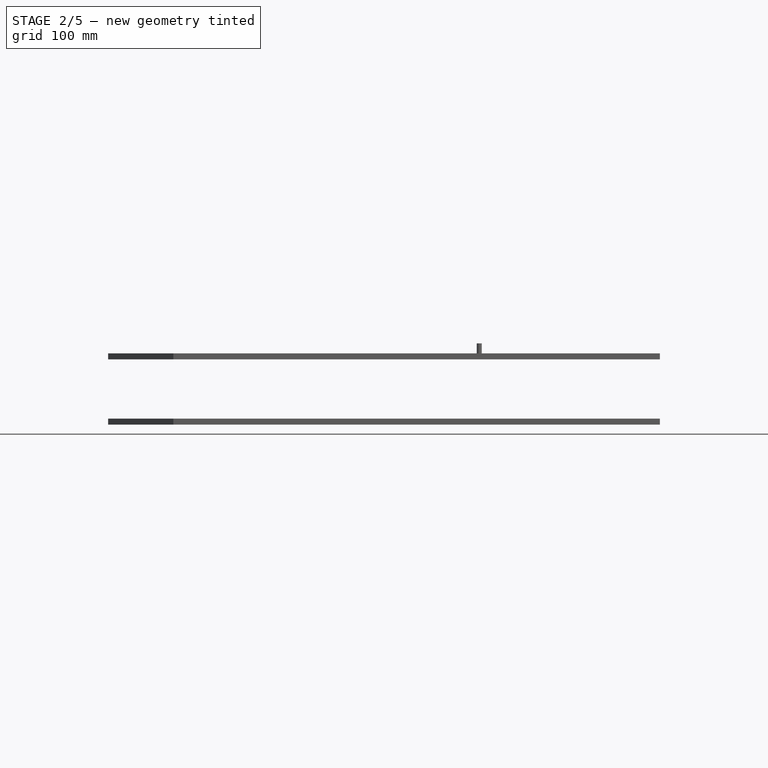
[diagram: stage 2 of 5 — front view after this stage's code; geometry added in this stage tinted green]
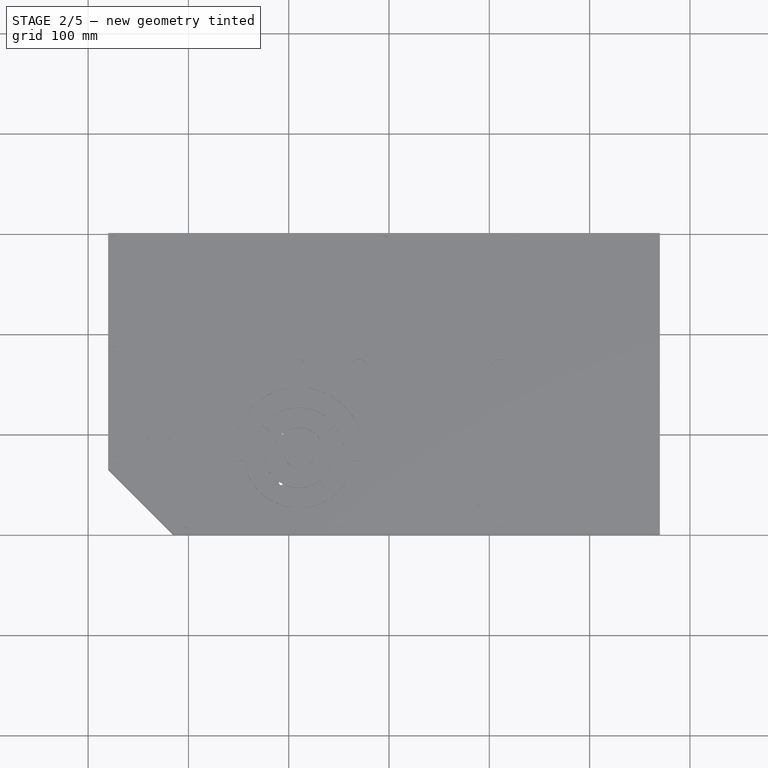
[diagram: stage 2 of 5 — top view after this stage's code; geometry added in this stage tinted green]
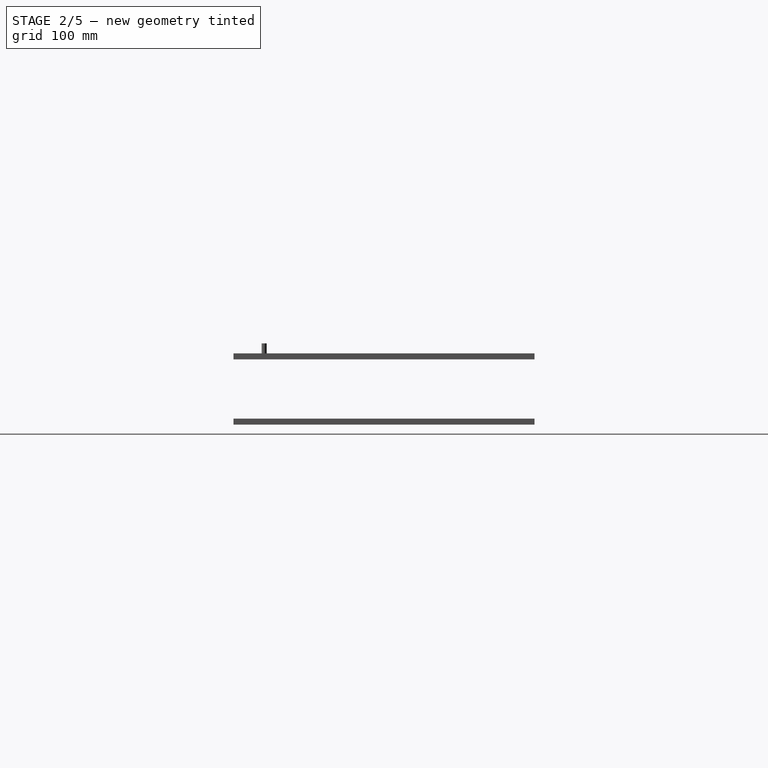
[diagram: stage 2 of 5 — right view after this stage's code; geometry added in this stage tinted green]
FEATURE [PartDesign::ShapeBinder] CopyHole002001
  Placement = pos=(0,0,65) rot=(0,0,-1;1.5708rad)
FEATURE [Sketcher::SketchObject] Sketch024
  MapMode = 5
  Placement = pos=(0,0,71) rot=(0,0,-1;1.5708rad)
  Support = -> [CopyHole002001]
  sketch-geometry (2):
    g0: Circle CenterX=-85 CenterY=225 CenterZ=0 NormalX=0 NormalY=0 NormalZ=1 AngleXU=0 Radius=35
    g1: Circle CenterX=-85 CenterY=225 CenterZ=0 NormalX=0 NormalY=0 NormalZ=1 AngleXU=0 Radius=45
  constraints (5):
    c: Coincident(g1,g0)
    c: Radius(g0) = 35
    c: Radius(g1) = 45
    c: DistanceX(g0,g-1) = 85
    c: DistanceY(g-1,g0) = 225
FEATURE [PartDesign::Pad] Pad011
  Length = 6
  Length2 = 100
  Placement = pos=(0,0,65) rot=(0,0,-1;1.5708rad)
  Profile = -> Sketch024
  Type = 0
FEATURE [PartDesign::Body] Body015  label="OSI Logo 2"
  Group = -> [CopyHole002001,Sketch024,Pad011]
  Origin = -> Origin015
  Tip = -> Pad011
FEATURE [PartDesign::ShapeBinder] CopyPad011
  Placement = pos=(0,0,6) rot=(0,0,1;0rad)
FEATURE [Sketcher::SketchObject] Sketch025
  MapMode = 5
  Placement = pos=(0,0,77) rot=(0,0,1;0rad)
  Support = -> [CopyPad011]
  sketch-geometry (10):
    g0: GeomPoint X=225 Y=85 Z=0
    g1: LineSegment StartX=225 StartY=85 StartZ=0 EndX=254.41 EndY=124.029 EndZ=0
    g2: LineSegment StartX=254.41 StartY=124.029 StartZ=0 EndX=264.168 EndY=114.515 EndZ=0
    g3: LineSegment StartX=264.168 StartY=114.515 StartZ=0 EndX=225 EndY=85 EndZ=0
    g4: LineSegment StartX=225 StartY=85 StartZ=0 EndX=263.767 EndY=55.7873 EndZ=0
    g5: LineSegment StartX=263.767 StartY=55.7873 StartZ=0 EndX=254.751 EndY=45.5196 EndZ=0
    g6: LineSegment StartX=254.751 StartY=45.5196 StartZ=0 EndX=225 EndY=85 EndZ=0
    g7: LineSegment StartX=225 StartY=85 StartZ=0 EndX=195.04 EndY=45.2415 EndZ=0
    g8: LineSegment StartX=195.04 StartY=45.2415 StartZ=0 EndX=185.674 EndY=55.3655 EndZ=0
    g9: LineSegment StartX=185.674 StartY=55.3655 StartZ=0 EndX=225 EndY=85 EndZ=0
  constraints (22):
    c: DistanceY(g-1,g0) = 85
    c: DistanceX(g-1,g0) = 225
    c: Coincident(g1,g0)
    c: Coincident(g1,g2)
    c: Coincident(g2,g3)
    c: Coincident(g3,g1)
    c: Coincident(g4,g0)
    c: Coincident(g4,g5)
    c: Coincident(g5,g6)
    c: Coincident(g6,g4)
    c: Coincident(g7,g0)
    c: Coincident(g7,g8)
    c: Coincident(g8,g9)
    c: Coincident(g9,g7)
    c: Angle(g9,g7) = 0.279253
    c: Angle(g6,g4) = 0.279253
    c: Angle(g3,g1) = 0.279253
    c: Angle(g1,g0) = 1.29154
    c: Angle(g4,g3) = 1.29154
    c: Angle(g7,g6) = 1.29154
    c: Angle(g9,g-1) = 2.49582
    c: Angle(g0,g-1) = 0.645772
FEATURE [PartDesign::Pad] Pad012
  Length = 6
  Length2 = 100
  Placement = pos=(0,0,6) rot=(0,0,1;0rad)
  Profile = -> Sketch025
  Reversed = true
  Type = 0
FEATURE [PartDesign::Body] Body016
  Group = -> [CopyPad011,Sketch025,Pad012]
  Origin = -> Origin016
  Tip = -> Pad012
FEATURE [Part::Cut] Cut001
  Base = -> Body015
  Tool = -> Body016
FEATURE [PartDesign::ShapeBinder] CopyHole002002
  Placement = pos=(0,0,65) rot=(0,0,-1;1.5708rad)
FEATURE [Sketcher::SketchObject] Sketch026
  MapMode = 5
  Placement = pos=(0,0,71) rot=(0,0,-1;1.5708rad)
  Support = -> [CopyHole002002]
  sketch-geometry (4):
    g0: GeomPoint X=-85 Y=225 Z=0
    g1: LineSegment StartX=-85 StartY=225 StartZ=0 EndX=-125.787 EndY=194.265 EndZ=0
    g2: LineSegment StartX=-125.787 StartY=194.265 StartZ=0 EndX=-116.219 EndY=183.571 EndZ=0
    g3: LineSegment StartX=-116.219 StartY=183.571 StartZ=0 EndX=-85 EndY=225 EndZ=0
  constraints (8):
    c: DistanceY(g-1,g0) = 225
    c: DistanceX(g0,g-1) = 85
    c: Coincident(g1,g0)
    c: Coincident(g1,g2)
    c: Coincident(g2,g3)
    c: Coincident(g3,g1)
    c: Angle(g1,g3) = 0.279253
    c: Angle(g3,g-2) = 0.645772
FEATURE [PartDesign::Pad] Pad013
  Length = 6
  Length2 = 100
  Placement = pos=(0,0,65) rot=(0,0,-1;1.5708rad)
  Profile = -> Sketch026
  Type = 0
FEATURE [PartDesign::Body] Body017
  Group = -> [CopyHole002002,Sketch026,Pad013]
  Origin = -> Origin017
  Tip = -> Pad013
FEATURE [Part::Cut] Cut002
  Base = -> Cut001
  Placement = pos=(0,0,-6) rot=(0,0,1;0rad)
  Tool = -> Body017
FEATURE [PartDesign::ShapeBinder] CopyHole002003
  Placement = pos=(0,0,65) rot=(0,0,-1;1.5708rad)
FEATURE [Sketcher::SketchObject] Sketch027
  MapMode = 5
  Placement = pos=(0,0,71) rot=(0,0,-1;1.5708rad)
  Support = -> [CopyHole002003]
  sketch-geometry (2):
    g0: Circle CenterX=-85 CenterY=225 CenterZ=0 NormalX=0 NormalY=0 NormalZ=1 AngleXU=0 Radius=15
    g1: Circle CenterX=-85 CenterY=225 CenterZ=0 NormalX=0 NormalY=0 NormalZ=1 AngleXU=0 Radius=25
  constraints (5):
    c: Coincident(g0,g1)
    c: DistanceY(g-1,g0) = 225
    c: DistanceX(g0,g-1) = 85
    c: Radius(g0) = 15
    c: Radius(g1) = 25
FEATURE [PartDesign::Pad] Pad014
  Length = 6
  Length2 = 100
  Placement = pos=(0,0,65) rot=(0,0,-1;1.5708rad)
  Profile = -> Sketch027
  Type = 0
FEATURE [PartDesign::ShapeBinder] CopyHole002004
  Placement = pos=(0,0,65) rot=(0,0,-1;1.5708rad)
FEATURE [Sketcher::SketchObject] Sketch028
  MapMode = 5
  Placement = pos=(0,0,71) rot=(0,0,-1;1.5708rad)
  Support = -> [CopyHole002004]
  sketch-geometry (3):
    g0: LineSegment StartX=-85 StartY=225 StartZ=0 EndX=-59.9138 EndY=239.483 EndZ=0
    g1: LineSegment StartX=-59.9138 StartY=239.483 StartZ=0 EndX=-57.5816 EndY=209.17 EndZ=0
    g2: LineSegment StartX=-57.5816 StartY=209.17 StartZ=0 EndX=-85 EndY=225 EndZ=0
  constraints (8):
    c: Coincident(g0,g1)
    c: Coincident(g1,g2)
    c: Coincident(g2,g0)
    c: DistanceY(g0) = 225
    c: DistanceX(g0,g-1) = 85
    c: Angle(g2,g0) = 1.0472
    c: Angle(g2,g-2) = 2.0944
    c: Distance(g2) = 31.66
FEATURE [PartDesign::Pad] Pad015
  Length = 6
  Length2 = 100
  Placement = pos=(0,0,65) rot=(0,0,-1;1.5708rad)
  Profile = -> Sketch028
  Type = 0
FEATURE [PartDesign::Body] Body019
  Group = -> [CopyHole002004,Sketch028,Pad015]
  Origin = -> Origin019
  Tip = -> Pad015
FEATURE [PartDesign::Boolean] Boolean
  BaseFeature = -> Pad014
  Group = -> [Body019]
  Type = 1
FEATURE [Part::Cut] Cut004
  Base = -> Cut003
  Tool = -> Body018
FEATURE [Part::Cut] Cut005
  Base = -> Cut004
  Tool = -> Cut002
FEATURE [PartDesign::Body] Body021  label="Front cover001"
  Group = -> [Sketch031,Pad016,Sketch032,Hole003,Sketch033,Pad017]
  Origin = -> Origin021
  Tip = -> Pad017
FEATURE [Part::Cut] Cut006
  Base = -> Body021
  Placement = pos=(-15,-4,0) rot=(0,0,1;0rad)
  Tool = -> Cut005
FEATURE [PartDesign::Body] Body024  label="Socket limit switches"
  Group = -> [CopyCut007,Sketch043,Pad021]
  Origin = -> Origin024
  Tip = -> Pad021
FEATURE [PartDesign::ShapeBinder] CopyCut008
FEATURE [Sketcher::SketchObject] Sketch044
  MapMode = 5
  Placement = pos=(0,0,71) rot=(0,0,1;0rad)
  Support = -> [CopyCut008]
  sketch-geometry (1):
    g0: Circle CenterX=210 CenterY=165 CenterZ=0 NormalX=0 NormalY=0 NormalZ=1 AngleXU=0 Radius=9
  constraints (3):
    c: Radius(g0) = 9
    c: DistanceY(g-1,g0) = 165
    c: DistanceX(g-1,g0) = 210
FEATURE [PartDesign::Pad] Pad022
  Length = 6
  Length2 = 100
  Profile = -> Sketch044
  Reversed = true
  Type = 0
FEATURE [PartDesign::Body] Body034  label="Button stepper power on/off"
  Group = -> [CopyCut017,Sketch053,Pad031]
  Origin = -> Origin034
  Tip = -> Pad031
FEATURE [PartDesign::ShapeBinder] CopyCut018
FEATURE [Sketcher::SketchObject] Sketch054
  MapMode = 5
  Placement = pos=(0,0,71) rot=(0,0,1;0rad)
  Support = -> [CopyCut018]
  sketch-geometry (4):
    g0: LineSegment StartX=395.5 StartY=41 StartZ=0 EndX=424.5 EndY=41 EndZ=0
    g1: LineSegment StartX=424.5 StartY=41 StartZ=0 EndX=424.5 EndY=20 EndZ=0
    g2: LineSegment StartX=424.5 StartY=20 StartZ=0 EndX=395.5 EndY=20 EndZ=0
    g3: LineSegment StartX=395.5 StartY=20 StartZ=0 EndX=395.5 EndY=41 EndZ=0
  constraints (12):
    c: Coincident(g0,g1)
    c: Coincident(g1,g2)
    c: Coincident(g2,g3)
    c: Coincident(g3,g0)
    c: Horizontal(g0)
    c: Horizontal(g2)
    c: Vertical(g1)
    c: Vertical(g3)
    c: DistanceY(g1,g1) = 21
    c: DistanceX(g0,g0) = 29
    c: DistanceX(g-1,g2) = 395.5
    c: DistanceY(g-1,g2) = 20
FEATURE [PartDesign::Pad] Pad032
  Length = 6
  Length2 = 100
  Profile = -> Sketch054
  Reversed = true
  Type = 0
FEATURE [PartDesign::Body] Body009  label="Right"
  Group = -> [CopyHole004,Sketch014,Pad004,Sketch036,Sketch037,Hole005,Boolean001,Sketch042,Hole009,Sketch065,Hole014]
  Origin = -> Origin009
  Tip = -> Hole014
FEATURE [PartDesign::ShapeBinder] CopyCut007002
FEATURE [Sketcher::SketchObject] Sketch066
  MapMode = 5
  Placement = pos=(0,0,71) rot=(0,0,1;0rad)
  Support = -> [CopyCut007002]
  sketch-geometry (1):
    g0: Circle CenterX=270 CenterY=165 CenterZ=0 NormalX=0 NormalY=0 NormalZ=1 AngleXU=0 Radius=9
  constraints (3):
    c: Radius(g0) = 9
    c: DistanceY(g-1,g0) = 165
    c: DistanceX(g-1,g0) = 270
FEATURE [PartDesign::Pad] Pad039
  Length = 6
  Length2 = 100
  Profile = -> Sketch066
  Reversed = true
  Type = 0
FEATURE [PartDesign::Body] Body022  label="Front cover002"
  Group = -> [Sketch034,Pad018,Sketch035,Hole004,CopyCut019001,Sketch070,Hole017]
  Origin = -> Origin022
  Tip = -> Hole017
FEATURE [Part::Cut] Cut007  label="Front"
  Base = -> Body022
  Tool = -> Cut006
FEATURE [Part::Cut] Cut008
  Base = -> Cut007
  Tool = -> Body024
FEATURE [Part::Cut] Cut009
  Base = -> Cut008
  Tool = -> Body025
FEATURE [Part::Cut] Cut010
  Base = -> Cut009
  Tool = -> Body038
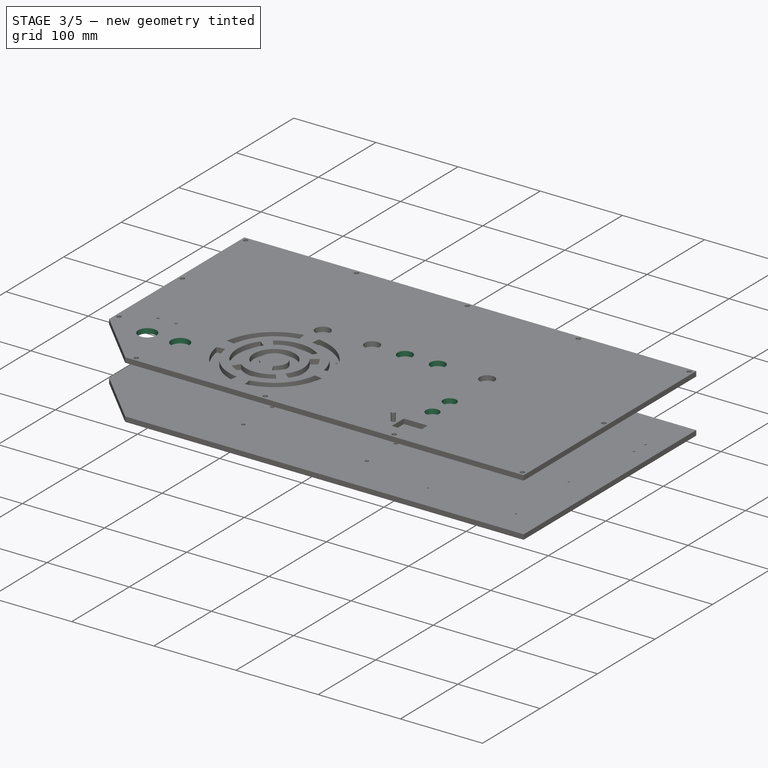
[diagram: stage 3 of 5 — iso view after this stage's code; geometry added in this stage tinted green]
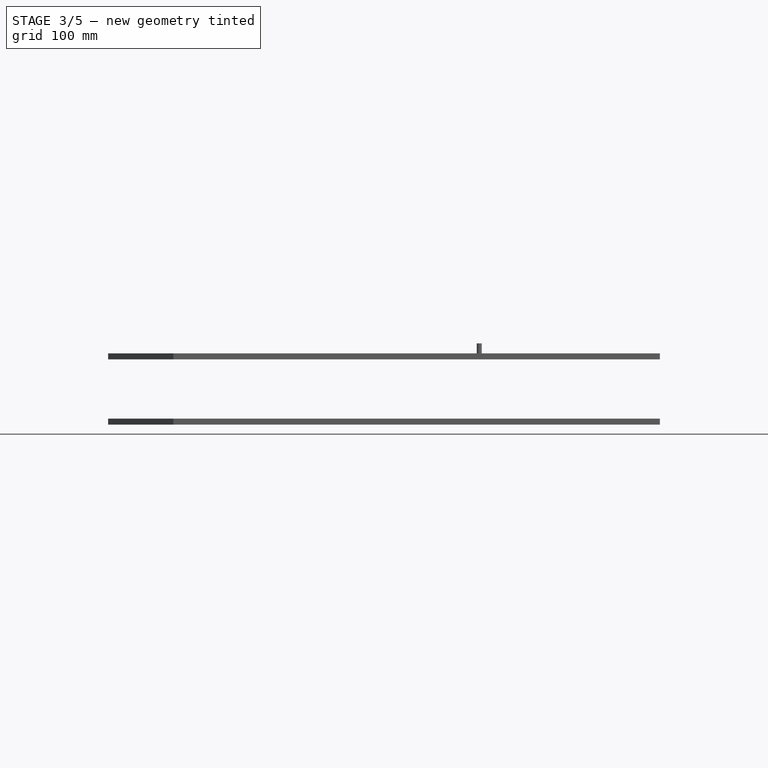
[diagram: stage 3 of 5 — front view after this stage's code; geometry added in this stage tinted green]
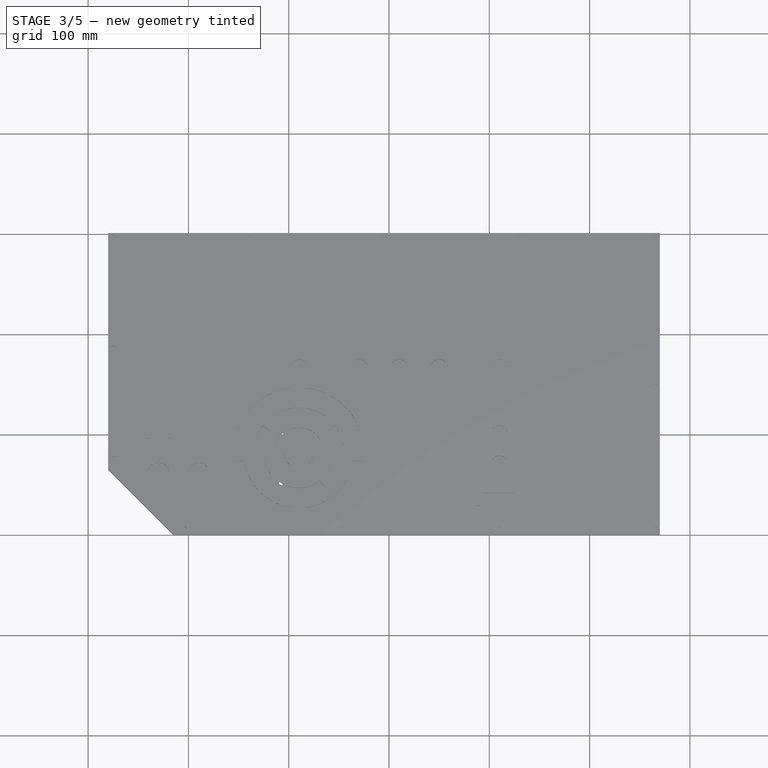
[diagram: stage 3 of 5 — top view after this stage's code; geometry added in this stage tinted green]
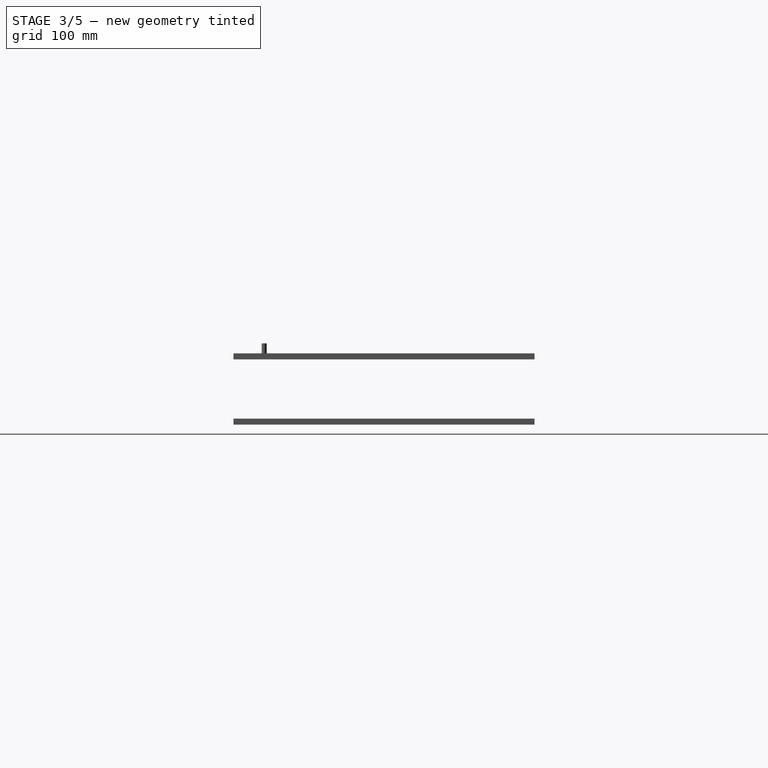
[diagram: stage 3 of 5 — right view after this stage's code; geometry added in this stage tinted green]
FEATURE [PartDesign::Body] Body025  label="Socket motor x-axis"
  Group = -> [CopyCut008,Sketch044,Pad022]
  Origin = -> Origin025
  Placement = pos=(60,0,0) rot=(0,0,1;0rad)
  Tip = -> Pad022
FEATURE [PartDesign::ShapeBinder] CopyCut009
FEATURE [Sketcher::SketchObject] Sketch045
  MapMode = 5
  Placement = pos=(0,0,71) rot=(0,0,1;0rad)
  Support = -> [CopyCut009]
  sketch-geometry (1):
    g0: Circle CenterX=210 CenterY=165 CenterZ=0 NormalX=0 NormalY=0 NormalZ=1 AngleXU=0 Radius=9
  constraints (3):
    c: Radius(g0) = 9
    c: DistanceY(g-1,g0) = 165
    c: DistanceX(g-1,g0) = 210
FEATURE [PartDesign::Pad] Pad023
  Length = 6
  Length2 = 100
  Profile = -> Sketch045
  Reversed = true
  Type = 0
FEATURE [PartDesign::Body] Body026  label="Socket motor y-axis"
  Group = -> [CopyCut009,Sketch045,Pad023]
  Origin = -> Origin026
  Placement = pos=(100,0,0) rot=(0,0,1;0rad)
  Tip = -> Pad023
FEATURE [PartDesign::ShapeBinder] CopyCut010
FEATURE [Sketcher::SketchObject] Sketch046
  MapMode = 5
  Placement = pos=(0,0,71) rot=(0,0,1;0rad)
  Support = -> [CopyCut010]
  sketch-geometry (1):
    g0: Circle CenterX=210 CenterY=165 CenterZ=0 NormalX=0 NormalY=0 NormalZ=1 AngleXU=0 Radius=9
  constraints (3):
    c: Radius(g0) = 9
    c: DistanceY(g-1,g0) = 165
    c: DistanceX(g-1,g0) = 210
FEATURE [PartDesign::Pad] Pad024
  Length = 6
  Length2 = 100
  Profile = -> Sketch046
  Reversed = true
  Type = 0
FEATURE [PartDesign::Body] Body027  label="Socket motor z-axis"
  Group = -> [CopyCut010,Sketch046,Pad024]
  Origin = -> Origin027
  Placement = pos=(140,0,0) rot=(0,0,1;0rad)
  Tip = -> Pad024
FEATURE [PartDesign::ShapeBinder] CopyCut011
FEATURE [Sketcher::SketchObject] Sketch047
  MapMode = 5
  Placement = pos=(0,0,71) rot=(0,0,1;0rad)
  Support = -> [CopyCut011]
  sketch-geometry (1):
    g0: Circle CenterX=110 CenterY=60 CenterZ=0 NormalX=0 NormalY=0 NormalZ=1 AngleXU=0 Radius=11
  constraints (3):
    c: Radius(g0) = 11
    c: DistanceY(g-1,g0) = 60
    c: DistanceX(g-1,g0) = 110
FEATURE [PartDesign::Pad] Pad025
  Length = 6
  Length2 = 100
  Profile = -> Sketch047
  Reversed = true
  Type = 0
FEATURE [PartDesign::Body] Body028  label="Socket RJ45"
  Group = -> [CopyCut011,Sketch047,Pad025]
  Origin = -> Origin028
  Tip = -> Pad025
FEATURE [PartDesign::ShapeBinder] CopyCut012
FEATURE [Sketcher::SketchObject] Sketch048
  MapMode = 5
  Placement = pos=(0,0,71) rot=(0,0,1;0rad)
  Support = -> [CopyCut012]
  sketch-geometry (1):
    g0: Circle CenterX=70 CenterY=60 CenterZ=0 NormalX=0 NormalY=0 NormalZ=1 AngleXU=0 Radius=11
  constraints (3):
    c: Radius(g0) = 11
    c: DistanceY(g-1,g0) = 60
    c: DistanceX(g-1,g0) = 70
FEATURE [PartDesign::Pad] Pad026
  Length = 6
  Length2 = 100
  Profile = -> Sketch048
  Reversed = true
  Type = 0
FEATURE [PartDesign::Body] Body029  label="Socket USB"
  Group = -> [CopyCut012,Sketch048,Pad026]
  Origin = -> Origin029
  Tip = -> Pad026
FEATURE [PartDesign::ShapeBinder] CopyCut013
FEATURE [Sketcher::SketchObject] Sketch049
  MapMode = 5
  Placement = pos=(0,0,71) rot=(0,0,1;0rad)
  Support = -> [CopyCut013]
  sketch-geometry (1):
    g0: Circle CenterX=73 CenterY=320 CenterZ=0 NormalX=0 NormalY=0 NormalZ=1 AngleXU=0 Radius=3
  constraints (3):
    c: Radius(g0) = 3
    c: DistanceY(g-1,g0) = 320
    c: DistanceX(g-1,g0) = 73
FEATURE [PartDesign::Pad] Pad027
  Length = 6
  Length2 = 100
  Profile = -> Sketch049
  Reversed = true
  Type = 0
FEATURE [PartDesign::Body] Body030  label="Socket HDMI 1"
  Group = -> [CopyCut013,Sketch049,Pad027]
  Origin = -> Origin030
  Tip = -> Pad027
FEATURE [PartDesign::ShapeBinder] CopyCut014
FEATURE [Sketcher::SketchObject] Sketch050
  MapMode = 5
  Placement = pos=(0,0,71) rot=(0,0,1;0rad)
  Support = -> [CopyCut014]
  sketch-geometry (1):
    g0: Circle CenterX=101.5 CenterY=320 CenterZ=0 NormalX=0 NormalY=0 NormalZ=1 AngleXU=0 Radius=3
  constraints (3):
    c: Radius(g0) = 3
    c: DistanceY(g-1,g0) = 320
    c: DistanceX(g-1,g0) = 101.5
FEATURE [PartDesign::Pad] Pad028
  Length = 6
  Length2 = 100
  Profile = -> Sketch050
  Reversed = true
  Type = 0
FEATURE [PartDesign::Body] Body031  label="Socket HDMI 2"
  Group = -> [CopyCut014,Sketch050,Pad028]
  Origin = -> Origin031
  Tip = -> Pad028
FEATURE [PartDesign::ShapeBinder] CopyCut016
FEATURE [Sketcher::SketchObject] Sketch052
  MapMode = 5
  Placement = pos=(0,0,71) rot=(0,0,1;0rad)
  Support = -> [CopyCut016]
  sketch-geometry (1):
    g0: Circle CenterX=410 CenterY=100 CenterZ=0 NormalX=0 NormalY=0 NormalZ=1 AngleXU=0 Radius=8
  constraints (3):
    c: Radius(g0) = 8
    c: DistanceY(g-1,g0) = 100
    c: DistanceX(g-1,g0) = 410
FEATURE [PartDesign::Pad] Pad030
  Length = 6
  Length2 = 100
  Profile = -> Sketch052
  Reversed = true
  Type = 0
FEATURE [PartDesign::Body] Body033  label="Button main power on/off"
  Group = -> [CopyCut016,Sketch052,Pad030]
  Origin = -> Origin033
  Tip = -> Pad030
FEATURE [PartDesign::ShapeBinder] CopyCut017
FEATURE [Sketcher::SketchObject] Sketch053
  MapMode = 5
  Placement = pos=(0,0,71) rot=(0,0,1;0rad)
  Support = -> [CopyCut017]
  sketch-geometry (1):
    g0: Circle CenterX=410 CenterY=70 CenterZ=0 NormalX=0 NormalY=0 NormalZ=1 AngleXU=0 Radius=8
  constraints (3):
    c: Radius(g0) = 8
    c: DistanceY(g-1,g0) = 70
    c: DistanceX(g-1,g0) = 410
FEATURE [PartDesign::Pad] Pad031
  Length = 6
  Length2 = 100
  Profile = -> Sketch053
  Reversed = true
  Type = 0
FEATURE [Part::Cut] Cut011
  Base = -> Cut010
  Tool = -> Body035
FEATURE [Part::Cut] Cut012
  Base = -> Cut011
  Tool = -> Body034
FEATURE [Part::Cut] Cut013
  Base = -> Cut012
  Tool = -> Body033
FEATURE [Part::Cut] Cut014
  Base = -> Cut013
  Tool = -> Body031
FEATURE [Part::Cut] Cut015
  Base = -> Cut014
  Tool = -> Body030
FEATURE [Part::Cut] Cut016
  Base = -> Cut015
  Tool = -> Body029
FEATURE [Part::Cut] Cut017
  Base = -> Cut016
  Tool = -> Body028
FEATURE [Part::Cut] Cut018
  Base = -> Cut017
  Tool = -> Body027
FEATURE [PartDesign::Body] Body043  label="Socket main power 2"
  Group = -> [CopyCut020001,Sketch076,Pad045]
  Origin = -> Origin043
  Tip = -> Pad045
FEATURE [Part::Cut] Cut019
  Base = -> Cut018
  Tool = -> Body026
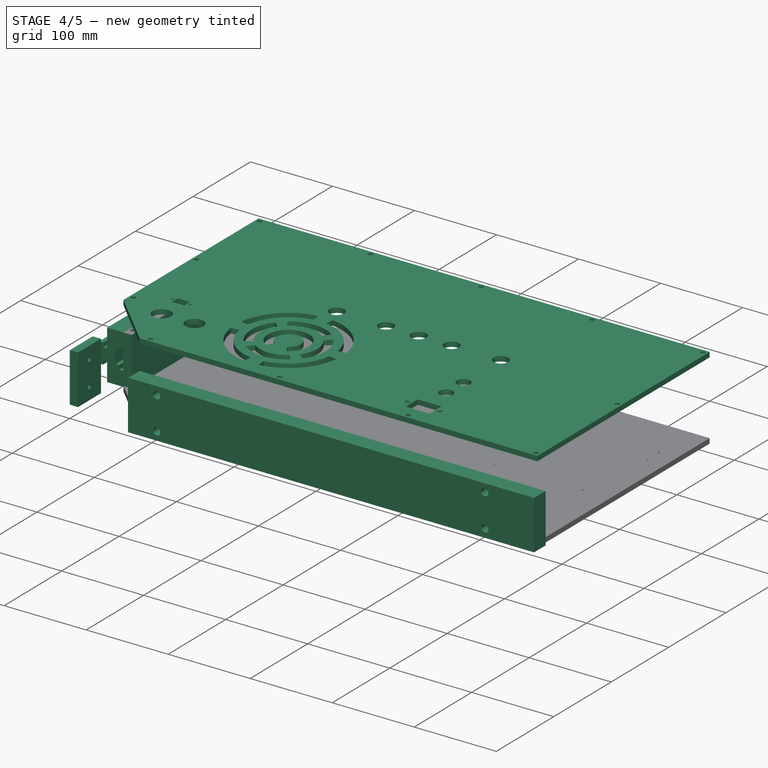
[diagram: stage 4 of 5 — iso view after this stage's code; geometry added in this stage tinted green]
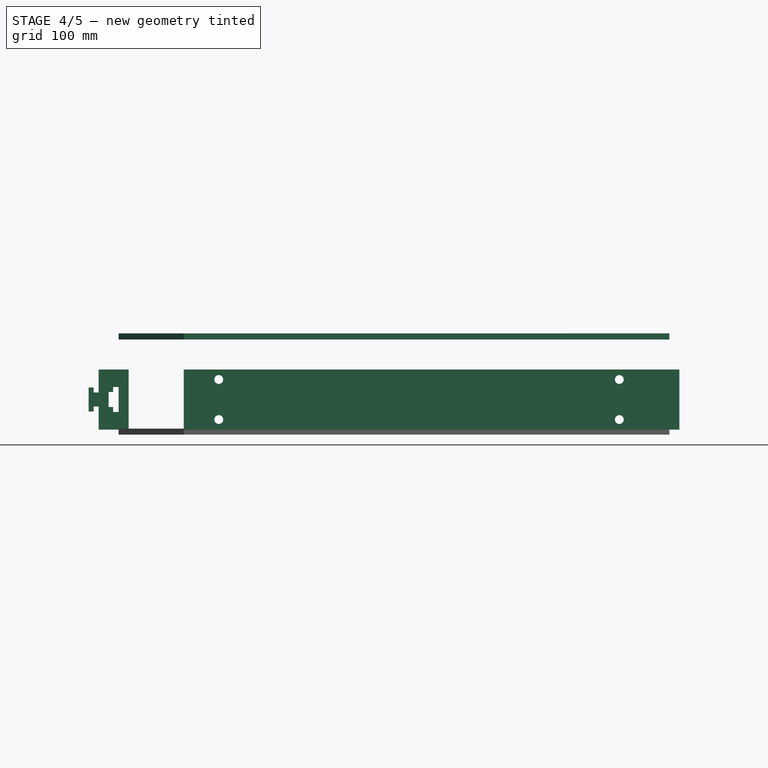
[diagram: stage 4 of 5 — front view after this stage's code; geometry added in this stage tinted green]
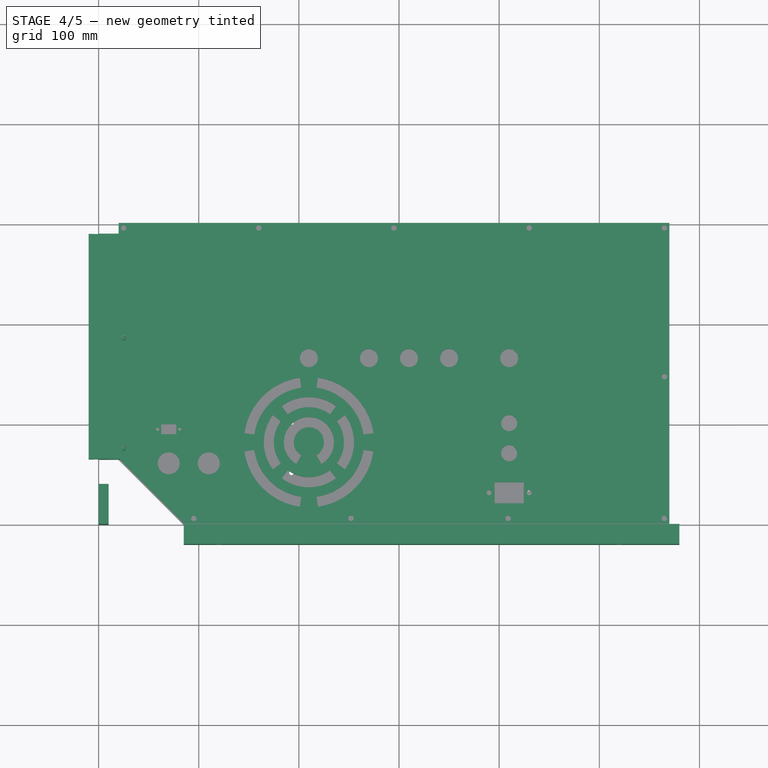
[diagram: stage 4 of 5 — top view after this stage's code; geometry added in this stage tinted green]
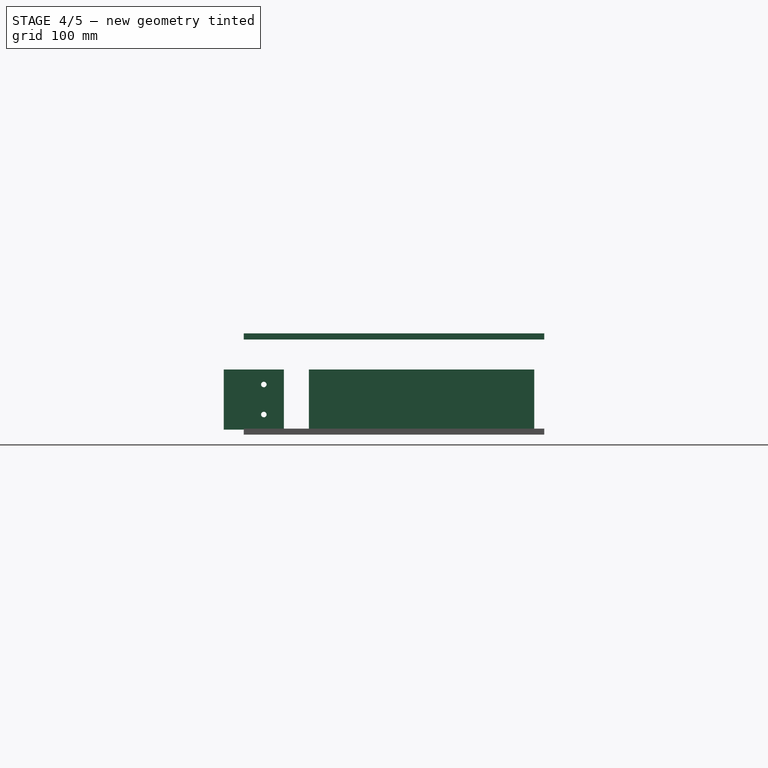
[diagram: stage 4 of 5 — right view after this stage's code; geometry added in this stage tinted green]
FEATURE [Sketcher::SketchObject] Sketch009
  MapMode = 5
  Placement = pos=(0,0,0) rot=(0.57735,0.57735,0.57735;2.0944rad)
  Support = -> [YZ_Plane]
  sketch-geometry (4):
    g0: LineSegment StartX=65 StartY=5 StartZ=0 EndX=290 EndY=5 EndZ=0
    g1: LineSegment StartX=290 StartY=5 StartZ=0 EndX=290 EndY=65 EndZ=0
    g2: LineSegment StartX=290 StartY=65 StartZ=0 EndX=65 EndY=65 EndZ=0
    g3: LineSegment StartX=65 StartY=65 StartZ=0 EndX=65 EndY=5 EndZ=0
  constraints (12):
    c: Coincident(g0,g1)
    c: Coincident(g1,g2)
    c: Coincident(g2,g3)
    c: Coincident(g3,g0)
    c: Horizontal(g0)
    c: Horizontal(g2)
    c: Vertical(g1)
    c: Vertical(g3)
    c: DistanceY(g1,g1) = 60
    c: DistanceY(g-1,g0) = 5
    c: DistanceX(g2,g2) = 225
    c: DistanceX(g-1,g0) = 65
FEATURE [PartDesign::Pad] Pad001
  Length = 10
  Length2 = 100
  Placement = pos=(0,0,0) rot=(0.57735,0.57735,0.57735;2.0944rad)
  Profile = -> Sketch009
  Type = 0
FEATURE [Sketcher::SketchObject] Sketch010
  MapMode = 5
  Placement = pos=(0,0,0) rot=(0.57735,0.57735,-0.57735;4.18879rad)
  Support = -> [Pad001]
  sketch-geometry (4):
    g0: LineSegment StartX=65 StartY=-28 StartZ=0 EndX=290 EndY=-28 EndZ=0
    g1: LineSegment StartX=290 StartY=-28 StartZ=0 EndX=290 EndY=-42 EndZ=0
    g2: LineSegment StartX=290 StartY=-42 StartZ=0 EndX=65 EndY=-42 EndZ=0
    g3: LineSegment StartX=65 StartY=-42 StartZ=0 EndX=65 EndY=-28 EndZ=0
  constraints (12):
    c: Coincident(g0,g1)
    c: Coincident(g1,g2)
    c: Coincident(g2,g3)
    c: Coincident(g3,g0)
    c: Horizontal(g0)
    c: Horizontal(g2)
    c: Vertical(g1)
    c: Vertical(g3)
    c: DistanceY(g1,g1) = 14
    c: DistanceX(g0,g0) = 225
    c: DistanceX(g-1,g0) = 65
    c: DistanceY(g0,g-1) = 28
FEATURE [PartDesign::Pad] Pad002
  BaseFeature = -> Pad001
  Length = 5
  Length2 = 100
  Placement = pos=(0,0,0) rot=(0.57735,0.57735,0.57735;2.0944rad)
  Profile = -> Sketch010
  Type = 0
FEATURE [Sketcher::SketchObject] Sketch015
  MapMode = 5
  Placement = pos=(-5,0,0) rot=(0.57735,0.57735,-0.57735;4.18879rad)
  sketch-geometry (4):
    g0: LineSegment StartX=65 StartY=-23 StartZ=0 EndX=290 EndY=-23 EndZ=0
    g1: LineSegment StartX=290 StartY=-23 StartZ=0 EndX=290 EndY=-47 EndZ=0
    g2: LineSegment StartX=290 StartY=-47 StartZ=0 EndX=65 EndY=-47 EndZ=0
    g3: LineSegment StartX=65 StartY=-47 StartZ=0 EndX=65 EndY=-23 EndZ=0
  constraints (12):
    c: Coincident(g0,g1)
    c: Coincident(g1,g2)
    c: Coincident(g2,g3)
    c: Coincident(g3,g0)
    c: Horizontal(g0)
    c: Horizontal(g2)
    c: Vertical(g1)
    c: Vertical(g3)
    c: DistanceX(g-1,g0) = 65
    c: DistanceY(g0,g-1) = 23
    c: DistanceX(g0,g0) = 225
    c: DistanceY(g1,g1) = 24
FEATURE [PartDesign::Pad] Pad005
  BaseFeature = -> Pad002
  Length = 5
  Length2 = 100
  Placement = pos=(0,0,0) rot=(0.57735,0.57735,0.57735;2.0944rad)
  Profile = -> Sketch015
  Type = 0
FEATURE [PartDesign::Body] Body035  label="Socket main power 1"
  Group = -> [CopyCut018,Sketch054,Pad032]
  Origin = -> Origin035
  Tip = -> Pad032
FEATURE [Sketcher::SketchObject] Sketch055
  MapMode = 5
  Placement = pos=(0,0,0) rot=(0.57735,0.57735,-0.57735;4.18879rad)
  sketch-geometry (4):
    g0: Circle CenterX=80 CenterY=-15 CenterZ=0 NormalX=0 NormalY=0 NormalZ=1 AngleXU=0 Radius=4
    g1: Circle CenterX=270 CenterY=-15 CenterZ=0 NormalX=0 NormalY=0 NormalZ=1 AngleXU=0 Radius=4
    g2: Circle CenterX=270 CenterY=-55 CenterZ=0 NormalX=0 NormalY=0 NormalZ=1 AngleXU=0 Radius=4
    g3: Circle CenterX=80 CenterY=-55 CenterZ=0 NormalX=0 NormalY=0 NormalZ=1 AngleXU=0 Radius=4
  constraints (12):
    c: Horizontal(g0,g1)
    c: Vertical(g1,g2)
    c: Horizontal(g2,g3)
    c: Vertical(g0,g3)
    c: DistanceY(g0,g-1) = 15
    c: Radius(g0) = 4
    c: DistanceX(g0,g1) = 190
    c: DistanceX(g-1,g0) = 80
    c: Radius(g1) = 4
    c: Equal(g1,g2)
    c: Equal(g1,g3)
    c: DistanceY(g3,g0) = 40
FEATURE [PartDesign::Hole] Hole010
  BaseFeature = -> Pad005
  Depth = 25
  DepthType = 1
  Diameter = 8.8
  DrillPoint = 1
  DrillPointAngle = 118
  HoleCutCountersinkAngle = 90
  HoleCutDepth = 0
  HoleCutDiameter = 16
  HoleCutType = 2
  ModelActualThread = false
  Placement = pos=(0,0,0) rot=(0.57735,0.57735,0.57735;2.0944rad)
  Profile = -> Sketch055
  Tapered = false
  TaperedAngle = 90
  ThreadAngle = 0
  ThreadClass = 0
  ThreadCutOffInner = 0
  ThreadCutOffOuter = 0
  ThreadDirection = 0
  ThreadFit = 0
  ThreadPitch = 0
  ThreadSize = 8
  ThreadType = 1
  Threaded = false
FEATURE [PartDesign::Body] Body  label="Mount to z-axis"
  Group = -> [Sketch009,Pad001,Sketch010,Pad002,Sketch015,Pad005,Sketch055,Hole010]
  Origin = -> Origin
  Placement = pos=(10,0,70) rot=(0,1,0;3.14159rad)
  Tip = -> Hole010
FEATURE [PartDesign::ShapeBinder] CopyCut007001
FEATURE [Sketcher::SketchObject] Sketch056
  MapMode = 5
  Placement = pos=(20,0,0) rot=(0.57735,-0.57735,-0.57735;2.0944rad)
  Support = -> [CopyCut007001]
  sketch-geometry (4):
    g0: LineSegment StartX=-290 StartY=65 StartZ=0 EndX=-65 EndY=65 EndZ=0
    g1: LineSegment StartX=-65 StartY=65 StartZ=0 EndX=-65 EndY=5 EndZ=0
    g2: LineSegment StartX=-65 StartY=5 StartZ=0 EndX=-290 EndY=5 EndZ=0
    g3: LineSegment StartX=-290 StartY=5 StartZ=0 EndX=-290 EndY=65 EndZ=0
  constraints (12):
    c: Coincident(g0,g1)
    c: Coincident(g1,g2)
    c: Coincident(g2,g3)
    c: Coincident(g3,g0)
    c: Horizontal(g0)
    c: Horizontal(g2)
    c: Vertical(g1)
    c: Vertical(g3)
    c: DistanceX(g1,g-1) = 65
    c: DistanceY(g1,g1) = 60
    c: DistanceY(g-1,g1) = 5
    c: DistanceX(g0,g0) = 225
FEATURE [PartDesign::Pad] Pad033
  Length = 10
  Length2 = 100
  Profile = -> Sketch056
  Reversed = true
  Type = 0
FEATURE [Sketcher::SketchObject] Sketch057
  MapMode = 5
  Placement = pos=(0,0,65) rot=(0,0,1;0rad)
  Support = -> [Pad033]
  sketch-geometry (2):
    g0: Circle CenterX=25 CenterY=185 CenterZ=0 NormalX=0 NormalY=0 NormalZ=1 AngleXU=0 Radius=7.74909
    g1: Circle CenterX=25 CenterY=75 CenterZ=0 NormalX=0 NormalY=0 NormalZ=1 AngleXU=0 Radius=6.76189
  constraints (4):
    c: Vertical(g0,g1)
    c: DistanceX(g-1,g1) = 25
    c: DistanceY(g1,g0) = 110
    c: DistanceY(g-1,g1) = 75
FEATURE [PartDesign::Hole] Hole011
  BaseFeature = -> Pad033
  Depth = 15
  DepthType = 0
  Diameter = 5.5
  DrillPoint = 1
  DrillPointAngle = 118
  HoleCutCountersinkAngle = 90
  HoleCutDepth = 0
  HoleCutDiameter = 5
  HoleCutType = 0
  ModelActualThread = false
  Profile = -> Sketch057
  Tapered = false
  TaperedAngle = 90
  ThreadAngle = 0
  ThreadClass = 0
  ThreadCutOffInner = 0
  ThreadCutOffOuter = 0
  ThreadDirection = 0
  ThreadFit = 0
  ThreadPitch = 0
  ThreadSize = 6
  ThreadType = 1
  Threaded = false
FEATURE [Sketcher::SketchObject] Sketch058
  MapMode = 5
  Placement = pos=(20,0,0) rot=(0.57735,-0.57735,-0.57735;2.0944rad)
  Support = -> [Hole011]
  sketch-geometry (8):
    g0: LineSegment StartX=-290 StartY=65 StartZ=0 EndX=-65 EndY=65 EndZ=0
    g1: LineSegment StartX=-65 StartY=65 StartZ=0 EndX=-65 EndY=47.5 EndZ=0
    g2: LineSegment StartX=-65 StartY=47.5 StartZ=0 EndX=-290 EndY=47.5 EndZ=0
    g3: LineSegment StartX=-290 StartY=47.5 StartZ=0 EndX=-290 EndY=65 EndZ=0
    g4: LineSegment StartX=-290 StartY=22.5 StartZ=0 EndX=-65 EndY=22.5 EndZ=0
    g5: LineSegment StartX=-65 StartY=22.5 StartZ=0 EndX=-65 EndY=5 EndZ=0
    g6: LineSegment StartX=-65 StartY=5 StartZ=0 EndX=-290 EndY=5 EndZ=0
    g7: LineSegment StartX=-290 StartY=5 StartZ=0 EndX=-290 EndY=22.5 EndZ=0
  constraints (24):
    c: Coincident(g0,g1)
    c: Coincident(g1,g2)
    c: Coincident(g2,g3)
    c: Coincident(g3,g0)
    c: Horizontal(g0)
    c: Horizontal(g2)
    c: Vertical(g1)
    c: Vertical(g3)
    c: DistanceY(g1,g1) = 17.5
    c: DistanceY(g-1,g0) = 65
    c: DistanceX(g2,g2) = 225
    c: DistanceX(g1,g-1) = 65
    c: Coincident(g4,g5)
    c: Coincident(g5,g6)
    c: Coincident(g6,g7)
    c: Coincident(g7,g4)
    c: Horizontal(g4)
    c: Horizontal(g6)
    c: Vertical(g5)
    c: Vertical(g7)
    c: Vertical(g5,g1)
    c: DistanceY(g5,g5) = 17.5
    c: Vertical(g4,g2)
    c: DistanceY(g-1,g5) = 5
FEATURE [PartDesign::Pad] Pad034
  BaseFeature = -> Hole011
  Length = 10
  Length2 = 100
  Profile = -> Sketch058
  Type = 0
FEATURE [Sketcher::SketchObject] Sketch059
  MapMode = 5
  Placement = pos=(0,0,22.5) rot=(0,0,1;0rad)
  Support = -> [Pad034]
  sketch-geometry (4):
    g0: LineSegment StartX=10 StartY=290 StartZ=0 EndX=14.5 EndY=290 EndZ=0
    g1: LineSegment StartX=14.5 StartY=290 StartZ=0 EndX=14.5 EndY=65 EndZ=0
    g2: LineSegment StartX=14.5 StartY=65 StartZ=0 EndX=10 EndY=65 EndZ=0
    g3: LineSegment StartX=10 StartY=65 StartZ=0 EndX=10 EndY=290 EndZ=0
  constraints (12):
    c: Coincident(g0,g1)
    c: Coincident(g1,g2)
    c: Coincident(g2,g3)
    c: Coincident(g3,g0)
    c: Horizontal(g0)
    c: Horizontal(g2)
    c: Vertical(g1)
    c: Vertical(g3)
    c: DistanceX(g0,g0) = 4.5
    c: DistanceY(g3,g3) = 225
    c: DistanceY(g-1,g2) = 65
    c: DistanceX(g-1,g2) = 10
FEATURE [PartDesign::Pad] Pad035
  BaseFeature = -> Pad034
  Length = 5
  Length2 = 100
  Profile = -> Sketch059
  Type = 0
FEATURE [Sketcher::SketchObject] Sketch060
  MapMode = 5
  Placement = pos=(0,0,47.5) rot=(1,0,0;3.14159rad)
  Support = -> [Pad035]
  sketch-geometry (4):
    g0: LineSegment StartX=10 StartY=-65 StartZ=0 EndX=14.5 EndY=-65 EndZ=0
    g1: LineSegment StartX=14.5 StartY=-65 StartZ=0 EndX=14.5 EndY=-290 EndZ=0
    g2: LineSegment StartX=14.5 StartY=-290 StartZ=0 EndX=10 EndY=-290 EndZ=0
    g3: LineSegment StartX=10 StartY=-290 StartZ=0 EndX=10 EndY=-65 EndZ=0
  constraints (12):
    c: Coincident(g0,g1)
    c: Coincident(g1,g2)
    c: Coincident(g2,g3)
    c: Coincident(g3,g0)
    c: Horizontal(g0)
    c: Horizontal(g2)
    c: Vertical(g1)
    c: Vertical(g3)
    c: DistanceY(g3,g3) = 225
    c: DistanceX(g2,g2) = 4.5
    c: DistanceX(g-1,g0) = 10
    c: DistanceY(g0,g-1) = 65
FEATURE [PartDesign::Pad] Pad036
  BaseFeature = -> Pad035
  Length = 5
  Length2 = 100
  Profile = -> Sketch060
  Type = 0
FEATURE [PartDesign::Body] Body036  label="Left side"
  Group = -> [CopyCut007001,Sketch056,Pad033,Sketch057,Hole011,Sketch058,Pad034,Sketch059,Pad035,Sketch060,Pad036]
  Origin = -> Origin036
  Tip = -> Pad036
FEATURE [PartDesign::ShapeBinder] CopyHole008
  Placement = pos=(0,0,5) rot=(0,0,1;0rad)
FEATURE [Sketcher::SketchObject] Sketch061
  MapMode = 5
  Placement = pos=(0,0,5) rot=(1,0,0;1.5708rad)
  Support = -> [CopyHole008]
  sketch-geometry (4):
    g0: LineSegment StartX=85 StartY=60 StartZ=0 EndX=580 EndY=60 EndZ=0
    g1: LineSegment StartX=580 StartY=60 StartZ=0 EndX=580 EndY=0 EndZ=0
    g2: LineSegment StartX=580 StartY=0 StartZ=0 EndX=85 EndY=0 EndZ=0
    g3: LineSegment StartX=85 StartY=0 StartZ=0 EndX=85 EndY=60 EndZ=0
  constraints (12):
    c: Coincident(g0,g1)
    c: Coincident(g1,g2)
    c: Coincident(g2,g3)
    c: Coincident(g3,g0)
    c: Horizontal(g0)
    c: Horizontal(g2)
    c: Vertical(g1)
    c: Vertical(g3)
    c: DistanceY(g1,g1) = 60
    c: DistanceY(g2,g-1) = 0
    c: DistanceX(g-1,g2) = 85
    c: DistanceX(g2,g2) = 495
FEATURE [PartDesign::Pad] Pad037
  Length = 20
  Length2 = 100
  Placement = pos=(0,0,5) rot=(0,0,1;0rad)
  Profile = -> Sketch061
  Type = 0
FEATURE [Sketcher::SketchObject] Sketch062
  MapMode = 5
  Placement = pos=(0,0,5) rot=(0,0.707107,0.707107;3.14159rad)
  Support = -> [Pad037]
  sketch-geometry (4):
    g0: Circle CenterX=-520 CenterY=50 CenterZ=0 NormalX=0 NormalY=0 NormalZ=1 AngleXU=0 Radius=11.6952
    g1: Circle CenterX=-120 CenterY=50 CenterZ=0 NormalX=0 NormalY=0 NormalZ=1 AngleXU=0 Radius=13.8677
    g2: Circle CenterX=-120 CenterY=10 CenterZ=0 NormalX=0 NormalY=0 NormalZ=1 AngleXU=0 Radius=12.0505
    g3: Circle CenterX=-520 CenterY=10 CenterZ=0 NormalX=0 NormalY=0 NormalZ=1 AngleXU=0 Radius=11.9195
  constraints (8):
    c: Vertical(g0,g3)
    c: Vertical(g2,g1)
    c: Horizontal(g2,g3)
    c: Horizontal(g0,g1)
    c: DistanceY(g2,g1) = 40
    c: DistanceY(g-1,g2) = 10
    c: DistanceX(g2,g-1) = 120
    c: DistanceX(g3,g2) = 400
FEATURE [PartDesign::Hole] Hole012
  BaseFeature = -> Pad037
  Depth = 25
  DepthType = 1
  Diameter = 8.8
  DrillPoint = 1
  DrillPointAngle = 118
  HoleCutCountersinkAngle = 90
  HoleCutDepth = 0
  HoleCutDiameter = 16
  HoleCutType = 2
  ModelActualThread = false
  Placement = pos=(0,0,5) rot=(0,0,1;0rad)
  Profile = -> Sketch062
  Tapered = false
  TaperedAngle = 90
  ThreadAngle = 0
  ThreadClass = 0
  ThreadCutOffInner = 0
  ThreadCutOffOuter = 0
  ThreadDirection = 0
  ThreadFit = 0
  ThreadPitch = 0
  ThreadSize = 8
  ThreadType = 1
  Threaded = false
FEATURE [PartDesign::Body] Body007  label="Baseplate"
  Group = -> [Sketch008,Pad,Sketch,Hole,Hole001,Sketch030,Sketch068,Hole016]
  Origin = -> Origin007
  Placement = pos=(0,0,-1) rot=(0,0,1;0rad)
  Tip = -> Hole016
FEATURE [PartDesign::ShapeBinder] CopyCut019
FEATURE [Sketcher::SketchObject] Sketch069
  MapMode = 5
  Placement = pos=(0,0,71) rot=(0,0,1;0rad)
  Support = -> [CopyCut019]
  sketch-geometry (4):
    g0: LineSegment StartX=62.5 StartY=99 StartZ=0 EndX=77.5 EndY=99 EndZ=0
    g1: LineSegment StartX=77.5 StartY=99 StartZ=0 EndX=77.5 EndY=89 EndZ=0
    g2: LineSegment StartX=77.5 StartY=89 StartZ=0 EndX=62.5 EndY=89 EndZ=0
    g3: LineSegment StartX=62.5 StartY=89 StartZ=0 EndX=62.5 EndY=99 EndZ=0
  constraints (12):
    c: Coincident(g0,g1)
    c: Coincident(g1,g2)
    c: Coincident(g2,g3)
    c: Coincident(g3,g0)
    c: Horizontal(g0)
    c: Horizontal(g2)
    c: Vertical(g1)
    c: Vertical(g3)
    c: DistanceX(g-1,g2) = 62.5
    c: DistanceY(g-1,g2) = 89
    c: DistanceY(g1,g1) = 10
    c: DistanceX(g2,g2) = 15
FEATURE [PartDesign::Pad] Pad040
  Length = 6
  Length2 = 100
  Profile = -> Sketch069
  Reversed = true
  Type = 0
FEATURE [PartDesign::Body] Body040  label="Corner_SVGExport"
  Group = -> [Sketch071,Pad041]
  Origin = -> Origin040
  Tip = -> Pad041
FEATURE [Part::Part2DObjectPython] Shape2DView004  label="Corner 2D"  # Draft 2D object (typed FeaturePython)
  Base = -> Body040
  HiddenLines = false
  InPlace = true
  Projection = (0,0,1)
  ProjectionMode = 0
  SegmentLength = 0.05
  Tessellation = false
  VisibleOnly = false
FEATURE [Part::Part2DObjectPython] Shape2DView006  label="Mount X-axis 1 of 2"  # Draft 2D object (typed FeaturePython)
  Base = -> Hole013
  HiddenLines = false
  InPlace = true
  Projection = (0,-1,0)
  ProjectionMode = 0
  SegmentLength = 0.05
  Tessellation = false
  VisibleOnly = false
FEATURE [Sketcher::SketchObject] Sketch074
  MapMode = 5
  Placement = pos=(0,0,0) rot=(0.57735,0.57735,0.57735;2.0944rad)
  Support = -> [YZ_Plane041]
  sketch-geometry (6):
    g0: LineSegment StartX=0 StartY=5 StartZ=0 EndX=40 EndY=5 EndZ=0
    g1: LineSegment StartX=40 StartY=5 StartZ=0 EndX=40 EndY=65 EndZ=0
    g2: LineSegment StartX=40 StartY=65 StartZ=0 EndX=0 EndY=65 EndZ=0
    g3: LineSegment StartX=0 StartY=65 StartZ=0 EndX=0 EndY=5 EndZ=0
    g4: Circle CenterX=20 CenterY=50 CenterZ=0 NormalX=0 NormalY=0 NormalZ=1 AngleXU=0 Radius=2.75
    g5: Circle CenterX=20 CenterY=20 CenterZ=0 NormalX=0 NormalY=0 NormalZ=1 AngleXU=0 Radius=2.75
  constraints (18):
    c: Coincident(g0,g1)
    c: Coincident(g1,g2)
    c: Coincident(g2,g3)
    c: Coincident(g3,g0)
    c: Horizontal(g0)
    c: Horizontal(g2)
    c: Vertical(g1)
    c: Vertical(g3)
    c: DistanceX(g0,g0) = 40
    c: DistanceY(g1,g1) = 60
    c: DistanceY(g-1,g0) = 5
    c: DistanceX(g-1,g0) = 0
    c: DistanceY(g0,g5) = 15
    c: DistanceY(g5,g4) = 30
    c: Vertical(g4,g5)
    c: DistanceX(g0,g5) = 20
    c: Radius(g4) = 2.75
    c: Radius(g5) = 2.75
FEATURE [PartDesign::Pad] Pad043
  Length = 10
  Length2 = 100
  Placement = pos=(0,0,0) rot=(0.57735,0.57735,0.57735;2.0944rad)
  Profile = -> Sketch074
  Type = 0
FEATURE [PartDesign::Hole] Hole018
  BaseFeature = -> Pad043
  Depth = 25
  DepthType = 1
  Diameter = 5.5
  DrillPoint = 1
  DrillPointAngle = 118
  HoleCutCountersinkAngle = 90
  HoleCutDepth = 0
  HoleCutDiameter = 5
  HoleCutType = 0
  ModelActualThread = false
  Placement = pos=(0,0,0) rot=(0.57735,0.57735,0.57735;2.0944rad)
  Profile = -> Sketch074
  Tapered = false
  TaperedAngle = 90
  ThreadAngle = 0
  ThreadClass = 0
  ThreadCutOffInner = 0
  ThreadCutOffOuter = 0
  ThreadDirection = 0
  ThreadFit = 0
  ThreadPitch = 0
  ThreadSize = 6
  ThreadType = 1
  Threaded = false
FEATURE [PartDesign::Body] Body041  label="MountX_SVGExport"
  Group = -> [Sketch074,Pad043,Hole018]
  Origin = -> Origin041
  Tip = -> Hole018
FEATURE [Part::Part2DObjectPython] Shape2DView007  label="Mount X-axis 2 of 2"  # Draft 2D object (typed FeaturePython)
  Base = -> Hole018
  HiddenLines = false
  InPlace = true
  Projection = (1,8.9407e-08,-8.9407e-08)
  ProjectionMode = 0
  SegmentLength = 0.05
  Tessellation = false
  VisibleOnly = false
FEATURE [Part::Part2DObjectPython] Shape2DView008  label="Left 1 of 4"  # Draft 2D object (typed FeaturePython)
  Base = -> Body036
  HiddenLines = false
  InPlace = true
  Projection = (1,0,0)
  ProjectionMode = 0
  SegmentLength = 0.05
  Tessellation = false
  VisibleOnly = false
FEATURE [Part::Part2DObjectPython] Shape2DView009  label="Left 2 of 4"  # Draft 2D object (typed FeaturePython)
  HiddenLines = false
  InPlace = true
  Projection = (-1,0,0)
  ProjectionMode = 0
  SegmentLength = 0.05
  Tessellation = false
  VisibleOnly = false
FEATURE [Part::Part2DObjectPython] Shape2DView010  label="Left 3 of 4"  # Draft 2D object (typed FeaturePython)
  Base = -> Sketch060
  HiddenLines = false
  InPlace = true
  Projection = (0,0,-1)
  ProjectionMode = 0
  SegmentLength = 0.05
  Tessellation = false
  VisibleOnly = false
FEATURE [Part::Part2DObjectPython] Shape2DView011  label="Left 4 of 4"  # Draft 2D object (typed FeaturePython)
  Base = -> Sketch060
  HiddenLines = false
  InPlace = true
  Projection = (0,0,-1)
  ProjectionMode = 0
  SegmentLength = 0.05
  Tessellation = false
  VisibleOnly = false
FEATURE [Part::Part2DObjectPython] Shape2DView012  label="MountZ 1 of 3"  # Draft 2D object (typed FeaturePython)
  Base = -> Hole010
  HiddenLines = false
  InPlace = true
  Projection = (-1,0,0)
  ProjectionMode = 0
  SegmentLength = 0.05
  Tessellation = false
  VisibleOnly = false
FEATURE [Part::Part2DObjectPython] Shape2DView013  label="MountZ 2 of 3"  # Draft 2D object (typed FeaturePython)
  Base = -> Sketch010
  HiddenLines = false
  InPlace = true
  Projection = (1,2.9802e-08,-2.9802e-08)
  ProjectionMode = 0
  SegmentLength = 0.05
  Tessellation = false
  VisibleOnly = false
FEATURE [Part::Part2DObjectPython] Shape2DView014  label="MountZ 3 of 3"  # Draft 2D object (typed FeaturePython)
  Base = -> Sketch015
  HiddenLines = false
  InPlace = true
  Projection = (1,2.9802e-08,-2.9802e-08)
  ProjectionMode = 0
  SegmentLength = 0.05
  Tessellation = false
  VisibleOnly = false
FEATURE [PartDesign::ShapeBinder] CopyCut020001
FEATURE [Sketcher::SketchObject] Sketch076
  MapMode = 5
  Placement = pos=(0,0,71) rot=(0,0,1;0rad)
  Support = -> [CopyCut020001]
  sketch-geometry (3):
    g0: Circle CenterX=430 CenterY=30.4784 CenterZ=0 NormalX=0 NormalY=0 NormalZ=1 AngleXU=0 Radius=2.5
    g1: GeomPoint X=424.5 Y=40.9784 Z=0
    g2: GeomPoint X=424.5 Y=19.9784 Z=0
  constraints (4):
    c: Radius(g0) = 2.5
    c: DistanceX(g2,g0) = 5.5
    c: DistanceY(g2,g1) = 21
    c: DistanceY(g0,g1) = 10.5
FEATURE [PartDesign::Pad] Pad045
  Length = 6
  Length2 = 100
  Profile = -> Sketch076
  Reversed = true
  Type = 0
FEATURE [Part::Cut] Cut020  label="Front_Cover"
  Base = -> Cut019
  Tool = -> Body039
FEATURE [Part::Cut] Cut021
  Base = -> Cut020
  Tool = -> Body043
FEATURE [PartDesign::Body] Body045
  Group = -> [CopyCut021,Sketch077,Pad046]
  Origin = -> Origin045
  Placement = pos=(0,0,-6) rot=(0,0,1;0rad)
  Tip = -> Pad046
FEATURE [Part::Cut] Cut022  label="Front Cover"
  Base = -> Cut021
  Placement = pos=(0,0,30) rot=(0,0,1;0rad)
  Tool = -> Body045
FEATURE [Part::Part2DObjectPython] Shape2DView015  label="Front Cover001"  # Draft 2D object (typed FeaturePython)
  Base = -> Cut022
  HiddenLines = false
  InPlace = true
  Projection = (0,0,1)
  ProjectionMode = 0
  SegmentLength = 0.05
  Tessellation = false
  VisibleOnly = false
FEATURE [TechDraw::DrawSVGTemplate] Template
  EditableTexts = AUTHOR_NAME=Lukas Winter; DN=1; DRAWING_TITLE=COSI Measure v1.0 - casing; FC-DATE=11/11/2018; FC-REV=REV A; FC-SC=1:2; FC-SH=1 / 9; FC-SI=A3; PN=1; SI-1=Baseplate of the casing where electronic components; SI-2=are mounted; SI-4=FreeCAD v0.17 drawing
  Height = 297
  Orientation = 1
  Width = 420
FEATURE [TechDraw::DrawProjGroupItem] ProjItem  label="Front001"
  CoarseView = false
  Direction = (0,0,1)
  Focus = 100
  HardHidden = false
  IsoCount = 0
  IsoHidden = false
  IsoVisible = false
  LockPosition = false
  Perspective = false
  Rotation = 0
  RotationVector = (1,0,0)
  ScaleType = 0
  SeamHidden = false
  SeamVisible = false
  SmoothHidden = false
  SmoothVisible = false
  Source = -> [Body007]
  Type = 0
  X = 0
  Y = -9
FEATURE [TechDraw::DrawViewDimension] Dimension
  FormatSpec = %.2f
  LockPosition = false
  MeasureType = 1
  References2D = -> [ProjItem]
  Rotation = 0
  ScaleType = 0
  Type = 2
  X = 161.397
  Y = -2.94789
FEATURE [TechDraw::DrawViewDimension] Dimension001
  FormatSpec = %.2f
  LockPosition = false
  MeasureType = 1
  Rotation = 0
  ScaleType = 0
  Type = 1
  X = 1.10546
  Y = -7.00124
FEATURE [TechDraw::DrawViewDimension] Dimension002
  FormatSpec = %.2f
  LockPosition = false
  MeasureType = 1
  Rotation = 0
  ScaleType = 0
  Type = 2
  X = -156.697
  Y = -0.840951
FEATURE [TechDraw::DrawViewDimension] Dimension003
  FormatSpec = %.2f
  LockPosition = false
  MeasureType = 1
  References2D = -> [ProjItem]
  Rotation = 0
  ScaleType = 0
  Type = 2
  X = -121.097
  Y = 62.5107
FEATURE [TechDraw::DrawViewDimension] Dimension004
  FormatSpec = %.2f
  LockPosition = false
  MeasureType = 1
  References2D = -> [ProjItem]
  Rotation = 0
  ScaleType = 0
  Type = 1
  X = -128.385
  Y = 47.0933
FEATURE [TechDraw::DrawViewDimension] Dimension005
  FormatSpec = %.2f
  LockPosition = false
  MeasureType = 1
  References2D = -> [ProjItem]
  Rotation = 0
  ScaleType = 0
  Type = 1
  X = -91.6637
  Y = 54.9421
FEATURE [TechDraw::DrawViewDimension] Dimension006
  FormatSpec = %.2f
  LockPosition = false
  MeasureType = 1
  References2D = -> [ProjItem]
  Rotation = 0
  ScaleType = 0
  Type = 2
  X = -120.817
  Y = 27.1908
FEATURE [TechDraw::DrawViewDimension] Dimension007
  FormatSpec = %.2f
  LockPosition = false
  MeasureType = 1
  References2D = -> [ProjItem]
  Rotation = 0
  ScaleType = 0
  Type = 1
  X = -94.1865
  Y = 8.68983
FEATURE [TechDraw::DrawViewDimension] Dimension008
  FormatSpec = %.2f
  LockPosition = false
  MeasureType = 1
  References2D = -> [ProjItem]
  Rotation = 0
  ScaleType = 0
  Type = 5
  X = -26.8114
  Y = -8.33633
FEATURE [TechDraw::DrawViewDimension] Dimension009
  FormatSpec = %.2f
  LockPosition = false
  MeasureType = 1
  References2D = -> [ProjItem]
  Rotation = 0
  ScaleType = 0
  Type = 5
  X = -9.91348
  Y = -39.4286
FEATURE [TechDraw::DrawViewDimension] Dimension010
  FormatSpec = %.2f
  LockPosition = false
  MeasureType = 1
  References2D = -> [ProjItem]
  Rotation = 0
  ScaleType = 0
  Type = 2
  X = -66.319
  Y = -63.7601
FEATURE [TechDraw::DrawViewDimension] Dimension011
  FormatSpec = %.2f
  LockPosition = false
  MeasureType = 1
  References2D = -> [ProjItem]
  Rotation = 0
  ScaleType = 0
  Type = 1
  X = -89.5627
  Y = -38.8105
FEATURE [TechDraw::DrawViewDimension] Dimension012
  FormatSpec = %.2f
  LockPosition = false
  MeasureType = 1
  References2D = -> [ProjItem]
  Rotation = 0
  ScaleType = 0
  Type = 1
  X = -17.486
  Y = -55.0171
FEATURE [TechDraw::DrawViewDimension] Dimension013
  FormatSpec = %.2f
  LockPosition = false
  MeasureType = 1
  References2D = -> [ProjItem]
  Rotation = 0
  ScaleType = 0
  Type = 1
  X = 95.7467
  Y = -2.77218
FEATURE [TechDraw::DrawViewDimension] Dimension014
  FormatSpec = %.2f
  LockPosition = false
  MeasureType = 1
  References2D = -> [ProjItem]
  Rotation = 0
  ScaleType = 0
  Type = 2
  X = 111.953
  Y = -64.1866
FEATURE [TechDraw::DrawViewDimension] Dimension015
  FormatSpec = %.2f
  LockPosition = false
  MeasureType = 1
  References2D = -> [ProjItem]
  Rotation = 0
  ScaleType = 0
  Type = 1
  X = 130.079
  Y = -41.7959
FEATURE [TechDraw::DrawViewDimension] Dimension016
  FormatSpec = %.2f
  LockPosition = false
  MeasureType = 1
  References2D = -> [ProjItem]
  Rotation = 0
  ScaleType = 0
  Type = 2
  X = 64.1866
  Y = -35.1853
FEATURE [TechDraw::DrawViewDimension] Dimension017
  FormatSpec = %.2f
  LockPosition = false
  MeasureType = 1
  References2D = -> [ProjItem]
  Rotation = 0
  ScaleType = 0
  Type = 1
  X = -20.898
  Y = 55.2303
FEATURE [TechDraw::DrawViewDimension] Dimension018
  FormatSpec = %.2f
  LockPosition = false
  MeasureType = 1
  References2D = -> [ProjItem]
  Rotation = 0
  ScaleType = 0
  Type = 1
  X = 5.54436
  Y = 63.9733
FEATURE [TechDraw::DrawViewDimension] Dimension019
  FormatSpec = %.2f
  LockPosition = false
  MeasureType = 1
  References2D = -> [ProjItem]
  Rotation = 0
  ScaleType = 0
  Type = 1
  X = 36.4648
  Y = 54.8038
FEATURE [TechDraw::DrawViewDimension] Dimension020
  FormatSpec = %.2f
  LockPosition = false
  MeasureType = 1
  References2D = -> [ProjItem]
  Rotation = 0
  ScaleType = 0
  Type = 1
  X = 69.4953
  Y = 64.0447
FEATURE [TechDraw::DrawViewDimension] Dimension021
  FormatSpec = %.2f
  LockPosition = false
  MeasureType = 1
  References2D = -> [ProjItem]
  Rotation = 0
  ScaleType = 0
  Type = 1
  X = 99.6683
  Y = 55.2848
FEATURE [TechDraw::DrawViewDimension] Dimension022
  FormatSpec = %.2f
  LockPosition = false
  MeasureType = 1
  References2D = -> [ProjItem]
  Rotation = 0
  ScaleType = 0
  Type = 2
  X = 129.88
  Y = 60.2682
FEATURE [TechDraw::DrawViewDimension] Dimension023
  FormatSpec = %.2f
  LockPosition = false
  MeasureType = 1
  References2D = -> [ProjItem]
  Rotation = 0
  ScaleType = 0
  Type = 2
  X = 116.799
  Y = 26.6301
FEATURE [TechDraw::DrawViewDimension] Dimension024
  FormatSpec = %.2f
  LockPosition = false
  MeasureType = 1
  References2D = -> [ProjItem]
  Rotation = 0
  ScaleType = 0
  Type = 5
  X = 103.125
  Y = -31.7308
FEATURE [TechDraw::DrawViewDimension] Dimension025
  FormatSpec = %.2f
  LockPosition = false
  MeasureType = 1
  References2D = -> [ProjItem]
  Rotation = 0
  ScaleType = 0
  Type = 5
  X = 16.3772
  Y = 22.0068
FEATURE [TechDraw::DrawViewDimension] Dimension026
  FormatSpec = %.2f
  LockPosition = false
  MeasureType = 1
  References2D = -> [ProjItem]
  Rotation = 0
  ScaleType = 0
  Type = 2
  X = 33.9007
  Y = -35.0062
FEATURE [TechDraw::DrawProjGroupItem] ProjItem002  label="Bottom001"
  CoarseView = false
  Direction = (0,-1,0)
  Focus = 100
  HardHidden = false
  IsoCount = 0
  IsoHidden = false
  IsoVisible = false
  LockPosition = false
  Perspective = false
  Rotation = 0
  RotationVector = (1,0,0)
  Scale = 0.5
  ScaleType = 2
  SeamHidden = false
  SeamVisible = false
  SmoothHidden = false
  SmoothVisible = false
  Source = -> [Body007]
  Type = 5
  X = 0
  Y = 165
FEATURE [TechDraw::DrawProjGroup] ProjGroup
  Anchor = -> ProjItem
  AutoDistribute = true
  CubeDirs = (6) [(0,-1,-6.12323e-17),(0,-6.12323e-17,1),(-1,0,0),(0,6.12323e-17,-1),(1,0,0),(0,1,6.12323e-17)]
  CubeRotations = (6) [(1,0,0),(1,0,0),(0,6.12323e-17,1),(-1,0,0),(0,-6.12323e-17,-1),(1,0,0)]
  LockPosition = false
  ProjectionType = 0
  Rotation = 0
  Scale = 0.5
  ScaleType = 2
  Source = -> [Body007]
  Views = -> [ProjItem,ProjItem002]
  X = 209.632
  Y = 200.093
  spacingX = 15
  spacingY = 15
FEATURE [TechDraw::DrawViewDimension] Dimension027
  FormatSpec = %.2f
  LockPosition = false
  MeasureType = 1
  References2D = -> [ProjItem002]
  Rotation = 0
  ScaleType = 0
  Type = 1
  X = -13.2041
  Y = 11.9758
FEATURE [TechDraw::DrawViewDimension] Dimension028
  FormatSpec = %.2f
  LockPosition = false
  MeasureType = 1
  References2D = -> [ProjItem002]
  Rotation = 0
  ScaleType = 0
  Type = 1
  X = -121.908
  Y = -19.3455
FEATURE [TechDraw::DrawViewDimension] Dimension029
  FormatSpec = %.2f
  LockPosition = false
  MeasureType = 1
  References2D = -> [ProjItem002]
  Rotation = 0
  ScaleType = 0
  Type = 2
  X = 153.536
  Y = 11.3617
FEATURE [TechDraw::DrawViewAnnotation] Annotation
  Font = osifont
  LineSpace = 80
  LockPosition = false
  MaxWidth = -1
  Rotation = 0
  ScaleType = 0
  Text = Make a M3 thread in the 2.5mm (view | from the top, overall 20x M3 threaded | holes). The remaining four holes  | (d=4.4mm) are non-threaded. Make a | countersink (M4) at the other side  | (bottom view). 
  TextSize = 5
  TextStyle = 0
  X = 80.2244
  Y = 41.6216
FEATURE [TechDraw::DrawPage] Page
  KeepUpdated = true
  ProjectionType = 0
  Template = -> Template
  Views = -> [ProjGroup,Dimension,Dimension001,Dimension002,Dimension003,Dimension004,Dimension005,Dimension006,Dimension007,Dimension008,Dimension009,Dimension010,Dimension011,Dimension012,Dimension013,Dimension014,Dimension015,Dimension016,Dimension017,Dimension018,Dimension019,Dimension020,Dimension021,Dimension022,Dimension023,Dimension024,Dimension025,Dimension026,Dimension027,Dimension028,Dimension029,+1 more]
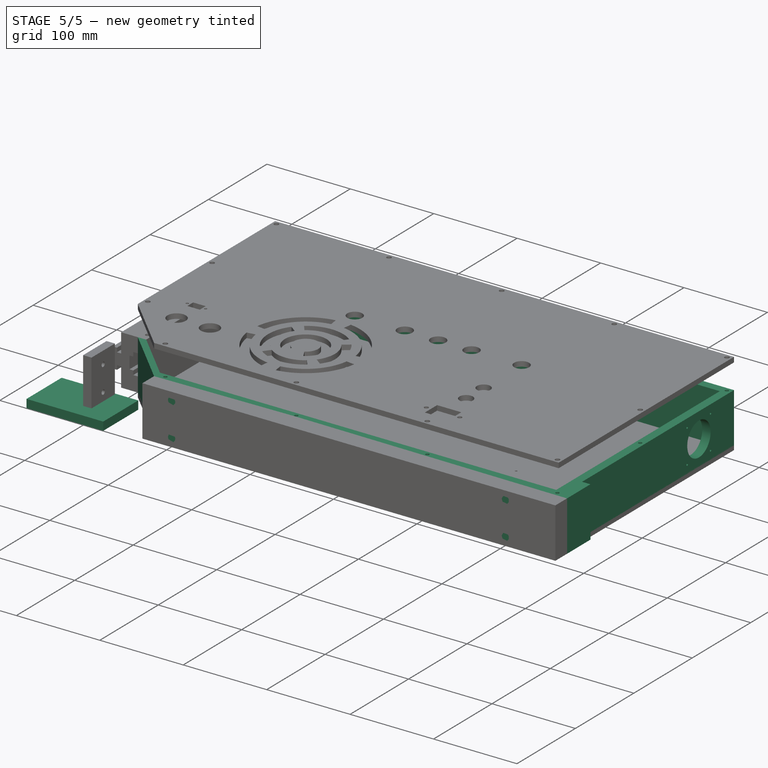
[diagram: stage 5 of 5 — iso view after this stage's code; geometry added in this stage tinted green]
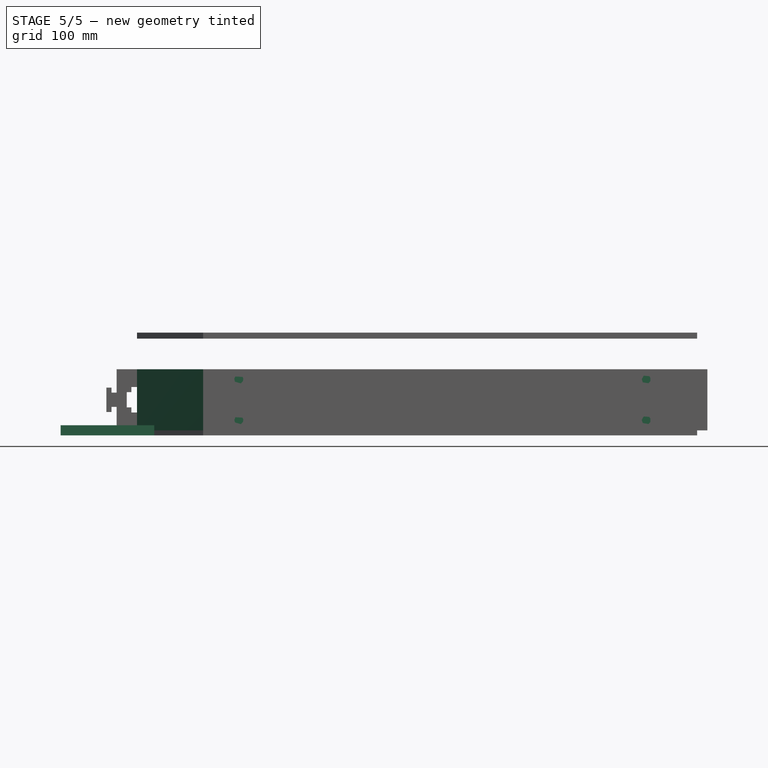
[diagram: stage 5 of 5 — front view after this stage's code; geometry added in this stage tinted green]
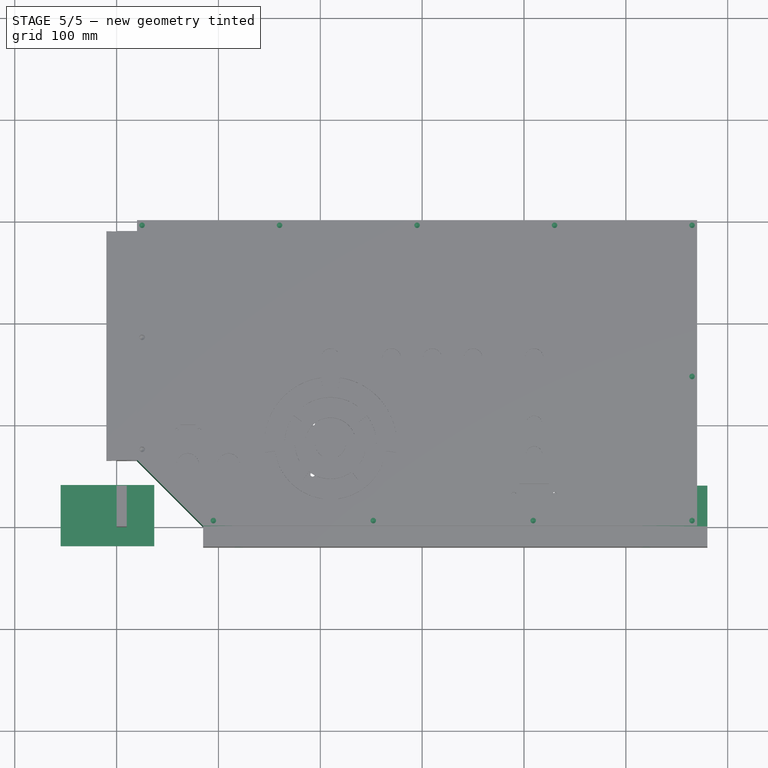
[diagram: stage 5 of 5 — top view after this stage's code; geometry added in this stage tinted green]
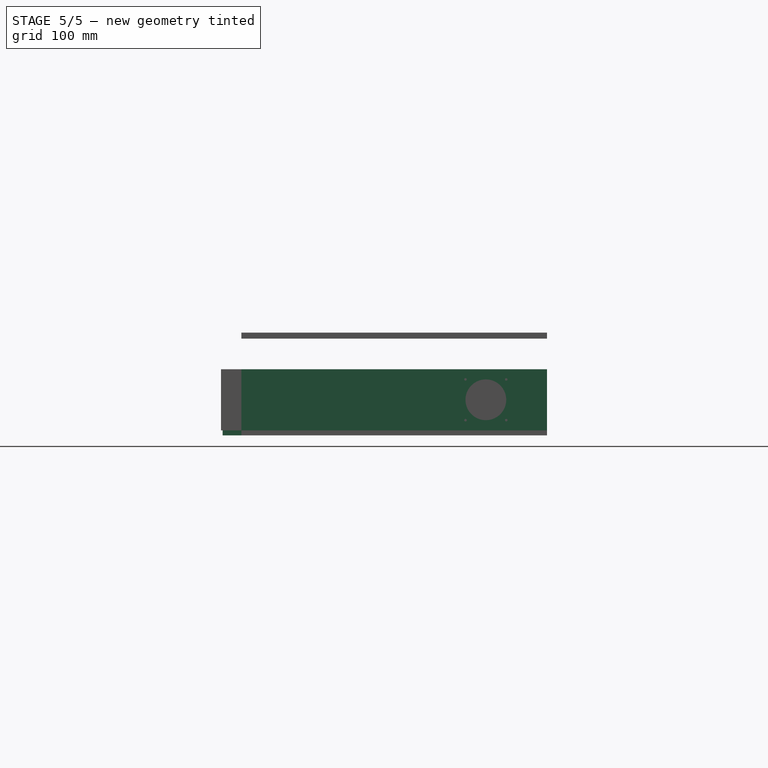
[diagram: stage 5 of 5 — right view after this stage's code; geometry added in this stage tinted green]
FEATURE [PartDesign::ShapeBinder] CopyPad
  Placement = pos=(0,0,5) rot=(0,0,1;0rad)
FEATURE [Sketcher::SketchObject] Sketch012
  MapMode = 5
  Placement = pos=(0,0,5) rot=(0,0,1;0rad)
  Support = -> [CopyPad]
  sketch-geometry (4):
    g0: LineSegment StartX=20 StartY=300 StartZ=0 EndX=570 EndY=300 EndZ=0
    g1: LineSegment StartX=570 StartY=300 StartZ=0 EndX=570 EndY=290 EndZ=0
    g2: LineSegment StartX=570 StartY=290 StartZ=0 EndX=20 EndY=290 EndZ=0
    g3: LineSegment StartX=20 StartY=290 StartZ=0 EndX=20 EndY=300 EndZ=0
  constraints (12):
    c: Coincident(g0,g1)
    c: Coincident(g1,g2)
    c: Coincident(g2,g3)
    c: Coincident(g3,g0)
    c: Horizontal(g0)
    c: Horizontal(g2)
    c: Vertical(g1)
    c: Vertical(g3)
    c: DistanceY(g-1,g1) = 290
    c: DistanceY(g1,g1) = 10
    c: DistanceX(g-1,g0) = 20
    c: DistanceX(g0,g0) = 550
FEATURE [PartDesign::Pad] Pad003
  Length = 60
  Length2 = 100
  Placement = pos=(0,0,5) rot=(0,0,1;0rad)
  Profile = -> Sketch012
  Type = 0
FEATURE [PartDesign::ShapeBinder] CopyHole004
  Placement = pos=(0,0,5) rot=(0,0,1;0rad)
FEATURE [Sketcher::SketchObject] Sketch014
  MapMode = 5
  Placement = pos=(0,290,5) rot=(1,0,0;1.5708rad)
  Support = -> [CopyHole004]
  sketch-geometry (4):
    g0: LineSegment StartX=560 StartY=60 StartZ=0 EndX=570 EndY=60 EndZ=0
    g1: LineSegment StartX=570 StartY=60 StartZ=0 EndX=570 EndY=0 EndZ=0
    g2: LineSegment StartX=570 StartY=0 StartZ=0 EndX=560 EndY=0 EndZ=0
    g3: LineSegment StartX=560 StartY=0 StartZ=0 EndX=560 EndY=60 EndZ=0
  constraints (11):
    c: Coincident(g0,g1)
    c: Coincident(g1,g2)
    c: Coincident(g2,g3)
    c: Coincident(g3,g0)
    c: Horizontal(g0)
    c: Horizontal(g2)
    c: Vertical(g1)
    c: Vertical(g3)
    c: DistanceX(g0,g0) = 10
    c: DistanceX(g-1,g2) = 560
    c: DistanceY(g3,g3) = 60
FEATURE [PartDesign::Pad] Pad004
  Length = 280
  Length2 = 100
  Placement = pos=(0,0,5) rot=(0,0,1;0rad)
  Profile = -> Sketch014
  Type = 0
FEATURE [PartDesign::ShapeBinder] CopyPad001
  Placement = pos=(0,0,5) rot=(0,0,1;0rad)
FEATURE [Sketcher::SketchObject] Sketch016
  MapMode = 5
  Placement = pos=(0,0,5) rot=(0,0,1;0rad)
  Support = -> [CopyPad001]
  sketch-geometry (4):
    g0: LineSegment StartX=85 StartY=10 StartZ=0 EndX=570.301 EndY=10 EndZ=0
    g1: LineSegment StartX=570.301 StartY=10 StartZ=0 EndX=570.301 EndY=0 EndZ=0
    g2: LineSegment StartX=570.301 StartY=0 StartZ=0 EndX=85 EndY=0 EndZ=0
    g3: LineSegment StartX=85 StartY=0 StartZ=0 EndX=85 EndY=10 EndZ=0
  constraints (11):
    c: Coincident(g0,g1)
    c: Coincident(g1,g2)
    c: Coincident(g2,g3)
    c: Coincident(g3,g0)
    c: Horizontal(g0)
    c: Horizontal(g2)
    c: Vertical(g1)
    c: Vertical(g3)
    c: DistanceY(g1,g1) = 10
    c: DistanceX(g-1,g2) = 85
    c: DistanceY(g-1,g2) = 0
FEATURE [PartDesign::Pad] Pad006
  Length = 60
  Length2 = 100
  Placement = pos=(0,0,5) rot=(0,0,1;0rad)
  Profile = -> Sketch016
  Type = 0
FEATURE [Sketcher::SketchObject] Sketch018
  MapMode = 5
  Placement = pos=(0,0,5) rot=(1,0,0;1.5708rad)
  Support = -> [Pad006]
FEATURE [PartDesign::ShapeBinder] CopyHole001
FEATURE [Sketcher::SketchObject] Sketch020
  MapMode = 5
  Placement = pos=(0,0,5) rot=(0,0,1;0rad)
  Support = -> [CopyHole001]
  sketch-geometry (4):
    g0: LineSegment StartX=20 StartY=65 StartZ=0 EndX=30.1339 EndY=65 EndZ=0
    g1: LineSegment StartX=30.1339 StartY=65 StartZ=0 EndX=85 EndY=10.0174 EndZ=0
    g2: LineSegment StartX=85 StartY=10.0174 StartZ=0 EndX=85 EndY=0 EndZ=0
    g3: LineSegment StartX=85 StartY=0 StartZ=0 EndX=20 EndY=65 EndZ=0
  constraints (10):
    c: Horizontal(g0)
    c: Coincident(g0,g1)
    c: Coincident(g1,g2)
    c: PointOnObject(g2,g-1)
    c: Vertical(g2)
    c: Coincident(g2,g3)
    c: Coincident(g3,g0)
    c: DistanceX(g-1,g2) = 85
    c: DistanceX(g-1,g0) = 20
    c: DistanceY(g-1,g0) = 65
FEATURE [PartDesign::Pad] Pad008
  Length = 60
  Length2 = 100
  Profile = -> Sketch020
  Type = 0
FEATURE [Sketcher::SketchObject] Sketch036
  MapMode = 5
  Placement = pos=(570,0,5) rot=(0.57735,0.57735,0.57735;2.0944rad)
  Support = -> [Pad004]
FEATURE [Sketcher::SketchObject] Sketch037
  MapMode = 5
  Placement = pos=(570,0,5) rot=(0.57735,0.57735,0.57735;2.0944rad)
  sketch-geometry (4):
    g0: Circle CenterX=220 CenterY=50 CenterZ=0 NormalX=0 NormalY=0 NormalZ=1 AngleXU=0 Radius=7.56977
    g1: Circle CenterX=220 CenterY=10 CenterZ=0 NormalX=0 NormalY=0 NormalZ=1 AngleXU=0 Radius=4.5176
    g2: Circle CenterX=260 CenterY=50 CenterZ=0 NormalX=0 NormalY=0 NormalZ=1 AngleXU=0 Radius=9.48034
    g3: Circle CenterX=260 CenterY=10 CenterZ=0 NormalX=0 NormalY=0 NormalZ=1 AngleXU=0 Radius=7.9244
  constraints (8):
    c: Horizontal(g3,g1)
    c: Horizontal(g2,g0)
    c: Vertical(g2,g3)
    c: DistanceY(g1,g0) = 40
    c: Vertical(g1,g0)
    c: DistanceY(g-1,g1) = 10
    c: DistanceX(g1,g3) = 40
    c: DistanceX(g-1,g1) = 220
FEATURE [PartDesign::Hole] Hole005
  BaseFeature = -> Pad004
  Depth = 25
  DepthType = 1
  Diameter = 2.5
  DrillPoint = 1
  DrillPointAngle = 118
  HoleCutCountersinkAngle = 90
  HoleCutDepth = 0
  HoleCutDiameter = 3
  HoleCutType = 0
  ModelActualThread = false
  Placement = pos=(0,0,5) rot=(0,0,1;0rad)
  Profile = -> Sketch037
  Tapered = false
  TaperedAngle = 90
  ThreadAngle = 60
  ThreadClass = 0
  ThreadCutOffInner = 0.0541266
  ThreadCutOffOuter = 0.108253
  ThreadDirection = 1
  ThreadFit = 0
  ThreadPitch = 0.5
  ThreadSize = 3
  ThreadType = 1
  Threaded = true
FEATURE [PartDesign::ShapeBinder] CopyPad019
  Placement = pos=(0,0,5) rot=(0,0,1;0rad)
FEATURE [Sketcher::SketchObject] Sketch038
  MapMode = 5
  Placement = pos=(570,0,5) rot=(0.57735,0.57735,0.57735;2.0944rad)
  Support = -> [CopyPad019]
  sketch-geometry (1):
    g0: Circle CenterX=240 CenterY=30 CenterZ=0 NormalX=0 NormalY=0 NormalZ=1 AngleXU=0 Radius=20
  constraints (3):
    c: DistanceY(g-1,g0) = 30
    c: DistanceX(g-1,g0) = 240
    c: Radius(g0) = 20
FEATURE [PartDesign::Pad] Pad020
  Length = 10
  Length2 = 100
  Placement = pos=(0,0,5) rot=(0,0,1;0rad)
  Profile = -> Sketch038
  Reversed = true
  Type = 0
FEATURE [PartDesign::Body] Body023
  Group = -> [CopyPad019,Sketch038,Pad020]
  Origin = -> Origin023
  Tip = -> Pad020
FEATURE [PartDesign::Boolean] Boolean001
  BaseFeature = -> Hole005
  Group = -> [Body023]
  Type = 1
FEATURE [Sketcher::SketchObject] Sketch040
  MapMode = 5
  Placement = pos=(0,0,71) rot=(0,0,-1;1.5708rad)
  Support = -> [Pad007]
  sketch-geometry (12):
    g0: Circle CenterX=-5 CenterY=95 CenterZ=0 NormalX=0 NormalY=0 NormalZ=1 AngleXU=0 Radius=21.1679
    g1: Circle CenterX=-5 CenterY=252 CenterZ=0 NormalX=0 NormalY=0 NormalZ=1 AngleXU=0 Radius=22.4818
    g2: Circle CenterX=-5 CenterY=409 CenterZ=0 NormalX=0 NormalY=0 NormalZ=1 AngleXU=0 Radius=20.9603
    g3: Circle CenterX=-5 CenterY=565 CenterZ=0 NormalX=0 NormalY=0 NormalZ=1 AngleXU=0 Radius=24.6473
    g4: Circle CenterX=-295 CenterY=565 CenterZ=0 NormalX=0 NormalY=0 NormalZ=1 AngleXU=0 Radius=20.9604
    g5: Circle CenterX=-146.548 CenterY=562.38 CenterZ=0 NormalX=0 NormalY=0 NormalZ=1 AngleXU=0 Radius=17.4422
    g6: Circle CenterX=-295 CenterY=430 CenterZ=0 NormalX=0 NormalY=0 NormalZ=1 AngleXU=0 Radius=21.099
    g7: Circle CenterX=-295 CenterY=295 CenterZ=0 NormalX=0 NormalY=0 NormalZ=1 AngleXU=0 Radius=18.9384
    g8: Circle CenterX=-295 CenterY=25 CenterZ=0 NormalX=0 NormalY=0 NormalZ=1 AngleXU=0 Radius=16.7312
    g9: Circle CenterX=-75 CenterY=25 CenterZ=0 NormalX=0 NormalY=0 NormalZ=1 AngleXU=0 Radius=15.5883
    g10: Circle CenterX=-185 CenterY=25 CenterZ=0 NormalX=0 NormalY=0 NormalZ=1 AngleXU=0 Radius=17.4701
    g11: Circle CenterX=-295 CenterY=160 CenterZ=0 NormalX=0 NormalY=0 NormalZ=1 AngleXU=0 Radius=23.0159
  constraints (22):
    c: DistanceX(g0,g-1) = 5
    c: DistanceY(g-1,g0) = 95
    c: Vertical(g3,g2)
    c: Vertical(g2,g1)
    c: Vertical(g1,g0)
    c: DistanceY(g-1,g3) = 565
    c: DistanceY(g2,g3) = 156
    c: DistanceY(g0,g1) = 157
    c: Vertical(g4,g6)
    c: Vertical(g6,g7)
    c: Vertical(g7,g11)
    c: Vertical(g11,g8)
    c: DistanceX(g8,g-1) = 295
    c: DistanceY(g-1,g8) = 25
    c: DistanceY(g6,g4) = 135
    c: DistanceY(g7,g6) = 135
    c: DistanceY(g11,g7) = 135
    c: DistanceY(g-1,g4) = 565
    c: Horizontal(g8,g10)
    c: Horizontal(g10,g9)
    c: DistanceX(g8,g10) = 110
    c: DistanceX(g10,g9) = 110
FEATURE [PartDesign::Hole] Hole007
  BaseFeature = -> Pad003
  Depth = 15
  DepthType = 0
  Diameter = 4.2
  DrillPoint = 1
  DrillPointAngle = 118
  HoleCutCountersinkAngle = 90
  HoleCutDepth = 0
  HoleCutDiameter = 10
  HoleCutType = 2
  ModelActualThread = false
  Placement = pos=(0,0,5) rot=(0,0,1;0rad)
  Profile = -> Sketch040
  Tapered = false
  TaperedAngle = 90
  ThreadAngle = 60
  ThreadClass = 0
  ThreadCutOffInner = 0.0866025
  ThreadCutOffOuter = 0.173205
  ThreadDirection = 1
  ThreadFit = 0
  ThreadPitch = 0.8
  ThreadSize = 6
  ThreadType = 1
  Threaded = true
FEATURE [Sketcher::SketchObject] Sketch041
  MapMode = 5
  Placement = pos=(0,0,71) rot=(0,0,-1;1.5708rad)
  Support = -> [Pad007]
  sketch-geometry (12):
    g0: Circle CenterX=-5 CenterY=95 CenterZ=0 NormalX=0 NormalY=0 NormalZ=1 AngleXU=0 Radius=21.1679
    g1: Circle CenterX=-5 CenterY=252 CenterZ=0 NormalX=0 NormalY=0 NormalZ=1 AngleXU=0 Radius=22.4818
    g2: Circle CenterX=-5 CenterY=409 CenterZ=0 NormalX=0 NormalY=0 NormalZ=1 AngleXU=0 Radius=20.9603
    g3: Circle CenterX=-5 CenterY=565 CenterZ=0 NormalX=0 NormalY=0 NormalZ=1 AngleXU=0 Radius=24.6473
    g4: Circle CenterX=-295 CenterY=565 CenterZ=0 NormalX=0 NormalY=0 NormalZ=1 AngleXU=0 Radius=20.9604
    g5: Circle CenterX=-146.548 CenterY=562.38 CenterZ=0 NormalX=0 NormalY=0 NormalZ=1 AngleXU=0 Radius=17.4422
    g6: Circle CenterX=-295 CenterY=430 CenterZ=0 NormalX=0 NormalY=0 NormalZ=1 AngleXU=0 Radius=21.099
    g7: Circle CenterX=-295 CenterY=295 CenterZ=0 NormalX=0 NormalY=0 NormalZ=1 AngleXU=0 Radius=18.9384
    g8: Circle CenterX=-295 CenterY=25 CenterZ=0 NormalX=0 NormalY=0 NormalZ=1 AngleXU=0 Radius=16.7312
    g9: Circle CenterX=-75 CenterY=25 CenterZ=0 NormalX=0 NormalY=0 NormalZ=1 AngleXU=0 Radius=15.5883
    g10: Circle CenterX=-185 CenterY=25 CenterZ=0 NormalX=0 NormalY=0 NormalZ=1 AngleXU=0 Radius=17.4701
    g11: Circle CenterX=-295 CenterY=160 CenterZ=0 NormalX=0 NormalY=0 NormalZ=1 AngleXU=0 Radius=23.0159
  constraints (22):
    c: DistanceX(g0,g-1) = 5
    c: DistanceY(g-1,g0) = 95
    c: Vertical(g3,g2)
    c: Vertical(g2,g1)
    c: Vertical(g1,g0)
    c: DistanceY(g-1,g3) = 565
    c: DistanceY(g2,g3) = 156
    c: DistanceY(g0,g1) = 157
    c: Vertical(g4,g6)
    c: Vertical(g6,g7)
    c: Vertical(g7,g11)
    c: Vertical(g11,g8)
    c: DistanceX(g8,g-1) = 295
    c: DistanceY(g-1,g8) = 25
    c: DistanceY(g6,g4) = 135
    c: DistanceY(g7,g6) = 135
    c: DistanceY(g11,g7) = 135
    c: DistanceY(g-1,g4) = 565
    c: Horizontal(g8,g10)
    c: Horizontal(g10,g9)
    c: DistanceX(g8,g10) = 110
    c: DistanceX(g10,g9) = 110
FEATURE [Sketcher::SketchObject] Sketch042
  MapMode = 5
  Placement = pos=(0,0,71) rot=(0,0,-1;1.5708rad)
  Support = -> [Pad007]
  sketch-geometry (12):
    g0: Circle CenterX=-5 CenterY=95 CenterZ=0 NormalX=0 NormalY=0 NormalZ=1 AngleXU=0 Radius=21.1679
    g1: Circle CenterX=-5 CenterY=252 CenterZ=0 NormalX=0 NormalY=0 NormalZ=1 AngleXU=0 Radius=22.4818
    g2: Circle CenterX=-5 CenterY=409 CenterZ=0 NormalX=0 NormalY=0 NormalZ=1 AngleXU=0 Radius=20.9603
    g3: Circle CenterX=-5 CenterY=565 CenterZ=0 NormalX=0 NormalY=0 NormalZ=1 AngleXU=0 Radius=24.6473
    g4: Circle CenterX=-295 CenterY=565 CenterZ=0 NormalX=0 NormalY=0 NormalZ=1 AngleXU=0 Radius=20.9604
    g5: Circle CenterX=-146.548 CenterY=565 CenterZ=0 NormalX=0 NormalY=0 NormalZ=1 AngleXU=0 Radius=17.4422
    g6: Circle CenterX=-295 CenterY=430 CenterZ=0 NormalX=0 NormalY=0 NormalZ=1 AngleXU=0 Radius=21.099
    g7: Circle CenterX=-295 CenterY=295 CenterZ=0 NormalX=0 NormalY=0 NormalZ=1 AngleXU=0 Radius=18.9384
    g8: Circle CenterX=-295 CenterY=25 CenterZ=0 NormalX=0 NormalY=0 NormalZ=1 AngleXU=0 Radius=16.7312
    g9: Circle CenterX=-75 CenterY=25 CenterZ=0 NormalX=0 NormalY=0 NormalZ=1 AngleXU=0 Radius=15.5883
    g10: Circle CenterX=-185 CenterY=25 CenterZ=0 NormalX=0 NormalY=0 NormalZ=1 AngleXU=0 Radius=17.4701
    g11: Circle CenterX=-295 CenterY=160 CenterZ=0 NormalX=0 NormalY=0 NormalZ=1 AngleXU=0 Radius=23.0159
  constraints (23):
    c: DistanceX(g0,g-1) = 5
    c: DistanceY(g-1,g0) = 95
    c: Vertical(g3,g2)
    c: Vertical(g2,g1)
    c: Vertical(g1,g0)
    c: DistanceY(g-1,g3) = 565
    c: DistanceY(g2,g3) = 156
    c: DistanceY(g0,g1) = 157
    c: Vertical(g4,g6)
    c: Vertical(g6,g7)
    c: Vertical(g7,g11)
    c: Vertical(g11,g8)
    c: DistanceX(g8,g-1) = 295
    c: DistanceY(g-1,g8) = 25
    c: DistanceY(g6,g4) = 135
    c: DistanceY(g7,g6) = 135
    c: DistanceY(g11,g7) = 135
    c: DistanceY(g-1,g4) = 565
    c: Horizontal(g8,g10)
    c: Horizontal(g10,g9)
    c: DistanceX(g8,g10) = 110
    c: DistanceX(g10,g9) = 110
    c: Horizontal(g5,g3)
FEATURE [PartDesign::Hole] Hole008
  BaseFeature = -> Pad006
  Depth = 15
  DepthType = 0
  Diameter = 4.2
  DrillPoint = 1
  DrillPointAngle = 118
  HoleCutCountersinkAngle = 90
  HoleCutDepth = 0
  HoleCutDiameter = 10
  HoleCutType = 2
  ModelActualThread = false
  Placement = pos=(0,0,5) rot=(0,0,1;0rad)
  Profile = -> Sketch041
  Tapered = false
  TaperedAngle = 90
  ThreadAngle = 60
  ThreadClass = 0
  ThreadCutOffInner = 0.0866025
  ThreadCutOffOuter = 0.173205
  ThreadDirection = 0
  ThreadFit = 0
  ThreadPitch = 0.8
  ThreadSize = 6
  ThreadType = 1
  Threaded = true
FEATURE [PartDesign::Body] Body010  label="Bottom"
  Group = -> [CopyPad001,Sketch016,Pad006,Sketch018,Sketch041,Hole008]
  Origin = -> Origin010
  Tip = -> Hole008
FEATURE [PartDesign::Hole] Hole009
  BaseFeature = -> Boolean001
  Depth = 15
  DepthType = 0
  Diameter = 4.2
  DrillPoint = 1
  DrillPointAngle = 118
  HoleCutCountersinkAngle = 90
  HoleCutDepth = 0
  HoleCutDiameter = 5
  HoleCutType = 0
  ModelActualThread = false
  Profile = -> Sketch042
  Tapered = false
  TaperedAngle = 90
  ThreadAngle = 60
  ThreadClass = 0
  ThreadCutOffInner = 0.0866025
  ThreadCutOffOuter = 0.173205
  ThreadDirection = 1
  ThreadFit = 0
  ThreadPitch = 0.8
  ThreadSize = 6
  ThreadType = 1
  Threaded = true
FEATURE [Sketcher::SketchObject] Sketch063
  ExternalGeometry = -> [Hole012]
  MapMode = 5
  Placement = pos=(0,0,5) rot=(0,0.707107,0.707107;3.14159rad)
  Support = -> [Hole012]
  sketch-geometry (4):
    g0: LineSegment StartX=-580 StartY=60 StartZ=0 EndX=-570 EndY=60 EndZ=0
    g1: LineSegment StartX=-570 StartY=60 StartZ=0 EndX=-570 EndY=0 EndZ=0
    g2: LineSegment StartX=-570 StartY=0 StartZ=0 EndX=-580 EndY=0 EndZ=0
    g3: LineSegment StartX=-580 StartY=0 StartZ=0 EndX=-580 EndY=60 EndZ=0
  constraints (11):
    c: Coincident(g0,g1)
    c: Coincident(g1,g2)
    c: Coincident(g2,g3)
    c: Coincident(g3,g0)
    c: Horizontal(g0)
    c: Horizontal(g2)
    c: Vertical(g1)
    c: Vertical(g3)
    c: Coincident(g0,g-3)
    c: DistanceX(g2,g2) = 10
    c: DistanceY(g3,g3) = 60
FEATURE [PartDesign::Pad] Pad038
  BaseFeature = -> Hole012
  Length = 40
  Length2 = 100
  Placement = pos=(0,0,5) rot=(0,0,1;0rad)
  Profile = -> Sketch063
  Type = 0
FEATURE [Sketcher::SketchObject] Sketch064
  MapMode = 5
  Placement = pos=(580,0,5) rot=(0.57735,0.57735,0.57735;2.0944rad)
  Support = -> [Pad038]
  sketch-geometry (2):
    g0: Circle CenterX=20 CenterY=45 CenterZ=0 NormalX=0 NormalY=0 NormalZ=1 AngleXU=0 Radius=8.82875
    g1: Circle CenterX=20 CenterY=15 CenterZ=0 NormalX=0 NormalY=0 NormalZ=1 AngleXU=0 Radius=6.57311
  constraints (3):
    c: DistanceY(g-1,g1) = 15
    c: DistanceY(g1,g0) = 30
    c: DistanceX(g-1,g1) = 20
FEATURE [Sketcher::SketchObject] Sketch065
  ExternalGeometry = -> [Hole009]
  MapMode = 5
  Placement = pos=(570,0,0) rot=(0.57735,0.57735,0.57735;2.0944rad)
  Support = -> [Hole009]
  sketch-geometry (2):
    g0: Circle CenterX=20 CenterY=50 CenterZ=0 NormalX=0 NormalY=0 NormalZ=1 AngleXU=0 Radius=5.52345
    g1: Circle CenterX=20 CenterY=20 CenterZ=0 NormalX=0 NormalY=0 NormalZ=1 AngleXU=0 Radius=5.89414
  constraints (4):
    c: Vertical(g0,g1)
    c: DistanceX(g-3,g0) = 10
    c: DistanceY(g1,g0) = 30
    c: DistanceY(g-3,g1) = 15
FEATURE [PartDesign::Hole] Hole014
  BaseFeature = -> Hole009
  Depth = 25
  DepthType = 1
  Diameter = 4.2
  DrillPoint = 1
  DrillPointAngle = 118
  HoleCutCountersinkAngle = 90
  HoleCutDepth = 0
  HoleCutDiameter = 5
  HoleCutType = 0
  ModelActualThread = false
  Profile = -> Sketch065
  Tapered = false
  TaperedAngle = 90
  ThreadAngle = 60
  ThreadClass = 0
  ThreadCutOffInner = 0.0866025
  ThreadCutOffOuter = 0.173205
  ThreadDirection = 1
  ThreadFit = 0
  ThreadPitch = 0.8
  ThreadSize = 6
  ThreadType = 1
  Threaded = true
FEATURE [PartDesign::Body] Body038  label="Socket emergency button"
  Group = -> [CopyCut007002,Sketch066,Pad039]
  Origin = -> Origin038
  Placement = pos=(140,0,0) rot=(0,0,1;0rad)
  Tip = -> Pad039
FEATURE [Sketcher::SketchObject] Sketch067
  MapMode = 5
  Placement = pos=(0,300,5) rot=(0,0.707107,0.707107;3.14159rad)
  Support = -> [Hole007]
  sketch-geometry (2):
    g0: Circle CenterX=-375 CenterY=30 CenterZ=0 NormalX=0 NormalY=0 NormalZ=1 AngleXU=0 Radius=17.4472
    g1: Circle CenterX=-215 CenterY=30 CenterZ=0 NormalX=0 NormalY=0 NormalZ=1 AngleXU=0 Radius=21.6778
  constraints (4):
    c: Horizontal(g1,g0)
    c: DistanceX(g0,g1) = 160
    c: DistanceX(g1,g-1) = 215
    c: DistanceY(g-1,g1) = 30
FEATURE [Part::MultiFuse] Fusion
  Shapes = -> [Pad038,Pad037]
FEATURE [PartDesign::Hole] Hole013
  BaseFeature = -> Pad038
  Depth = 25
  DepthType = 1
  Diameter = 5.5
  DrillPoint = 1
  DrillPointAngle = 118
  HoleCutCountersinkAngle = 90
  HoleCutDepth = 0
  HoleCutDiameter = 10
  HoleCutType = 2
  ModelActualThread = false
  Placement = pos=(0,0,5) rot=(0,0,1;0rad)
  Profile = -> Sketch064
  Tapered = false
  TaperedAngle = 90
  ThreadAngle = 0
  ThreadClass = 0
  ThreadCutOffInner = 0
  ThreadCutOffOuter = 0
  ThreadDirection = 0
  ThreadFit = 0
  ThreadPitch = 0
  ThreadSize = 6
  ThreadType = 1
  Threaded = false
FEATURE [PartDesign::Body] Body037  label="Mount to x-axis"
  Group = -> [CopyHole008,Sketch061,Pad037,Sketch062,Hole012,Sketch063,Pad038,Sketch064,Hole013]
  Origin = -> Origin037
  Tip = -> Hole013
FEATURE [Part::MultiFuse] Fusion001
  Shapes = -> [Hole013,Fusion]
FEATURE [PartDesign::Hole] Hole015
  BaseFeature = -> Hole007
  Depth = 25
  DepthType = 1
  Diameter = 5.5
  DrillPoint = 1
  DrillPointAngle = 118
  HoleCutCountersinkAngle = 90
  HoleCutDepth = 0
  HoleCutDiameter = 5
  HoleCutType = 0
  ModelActualThread = false
  Placement = pos=(0,0,5) rot=(0,0,1;0rad)
  Profile = -> Sketch067
  Tapered = false
  TaperedAngle = 90
  ThreadAngle = 0
  ThreadClass = 0
  ThreadCutOffInner = 0
  ThreadCutOffOuter = 0
  ThreadDirection = 0
  ThreadFit = 0
  ThreadPitch = 0
  ThreadSize = 6
  ThreadType = 1
  Threaded = false
FEATURE [Part::Part2DObjectPython] Shape2DView  label="Baseplate 2D"  # Draft 2D object (typed FeaturePython)
  Base = -> Body007
  HiddenLines = false
  InPlace = true
  Projection = (0,0,1)
  ProjectionMode = 0
  SegmentLength = 0.05
  Tessellation = false
  VisibleOnly = false
FEATURE [Part::Part2DObjectPython] Shape2DView001  label="Top 2D"  # Draft 2D object (typed FeaturePython)
  Base = -> Body008
  HiddenLines = false
  InPlace = true
  Projection = (0,-1,0)
  ProjectionMode = 0
  SegmentLength = 0.05
  Tessellation = false
  VisibleOnly = false
FEATURE [Part::Part2DObjectPython] Shape2DView002  label="Right 2D"  # Draft 2D object (typed FeaturePython)
  Base = -> Body009
  HiddenLines = false
  InPlace = true
  Projection = (1,0,0)
  ProjectionMode = 0
  SegmentLength = 0.05
  Tessellation = false
  VisibleOnly = false
FEATURE [Part::Part2DObjectPython] Shape2DView003  label="Bottom 2D"  # Draft 2D object (typed FeaturePython)
  Base = -> Body010
  HiddenLines = false
  InPlace = true
  Projection = (0,-1,0)
  ProjectionMode = 0
  SegmentLength = 0.05
  Tessellation = false
  VisibleOnly = false
FEATURE [Sketcher::SketchObject] Sketch071
  MapMode = 5
  Support = -> [XY_Plane040]
  sketch-geometry (4):
    g0: LineSegment StartX=-54.9115 StartY=41.501 StartZ=0 EndX=37.0085 EndY=41.501 EndZ=0
    g1: LineSegment StartX=37.0085 StartY=41.501 StartZ=0 EndX=37.0085 EndY=-18.499 EndZ=0
    g2: LineSegment StartX=37.0085 StartY=-18.499 StartZ=0 EndX=-54.9115 EndY=-18.499 EndZ=0
    g3: LineSegment StartX=-54.9115 StartY=-18.499 StartZ=0 EndX=-54.9115 EndY=41.501 EndZ=0
  constraints (10):
    c: Coincident(g0,g1)
    c: Coincident(g1,g2)
    c: Coincident(g2,g3)
    c: Coincident(g3,g0)
    c: Horizontal(g0)
    c: Horizontal(g2)
    c: Vertical(g1)
    c: Vertical(g3)
    c: DistanceX(g2,g2) = 91.92
    c: DistanceY(g3,g3) = 60
FEATURE [PartDesign::Pad] Pad041
  Length = 10
  Length2 = 100
  Profile = -> Sketch071
  Type = 0
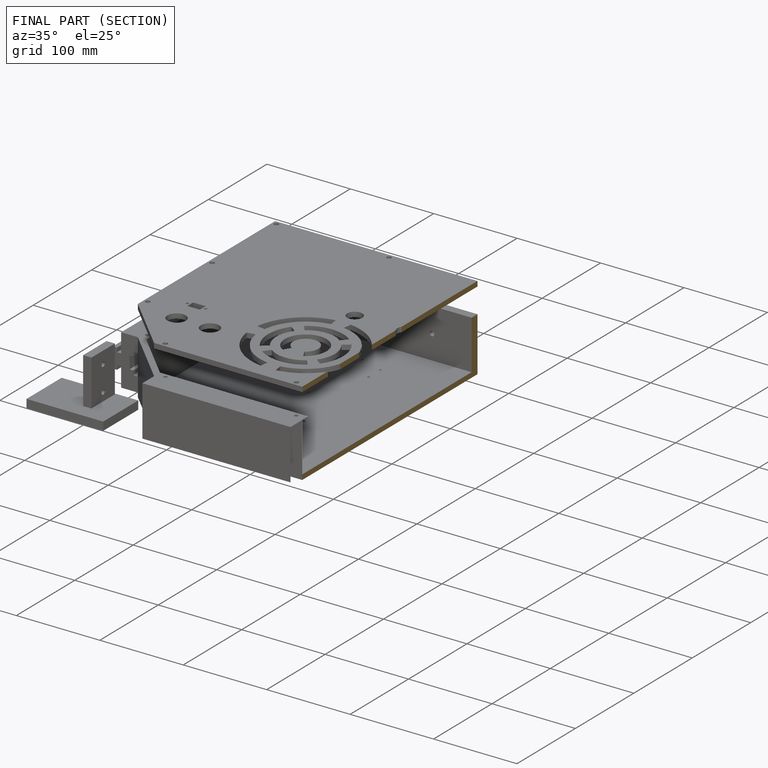
[diagram: finished part — half-section view (interior)]
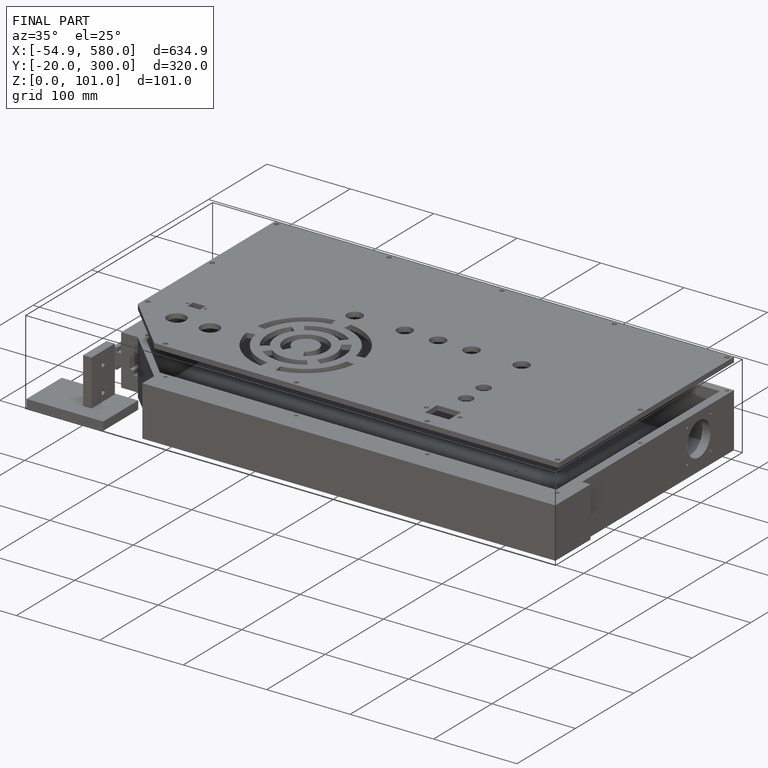
[diagram: finished part — iso view with bounding-box wireframe]
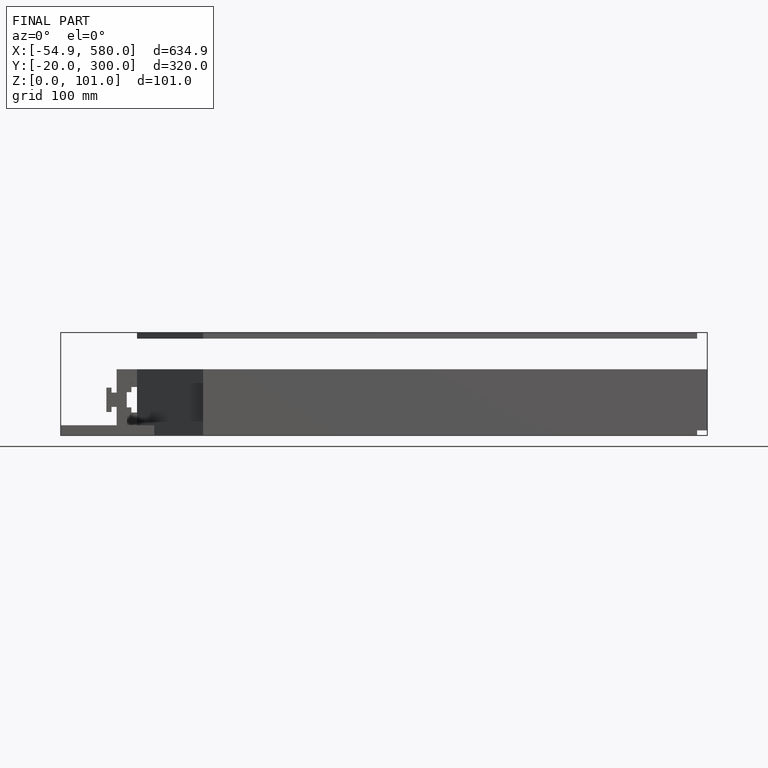
[diagram: finished part — front view with bounding-box wireframe]
